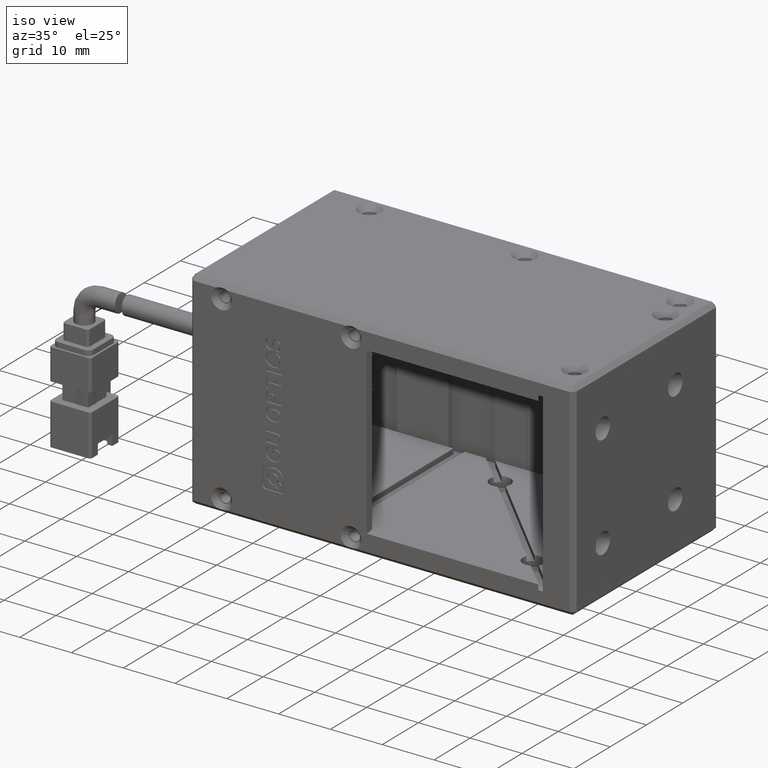
[diagram: clean part render]
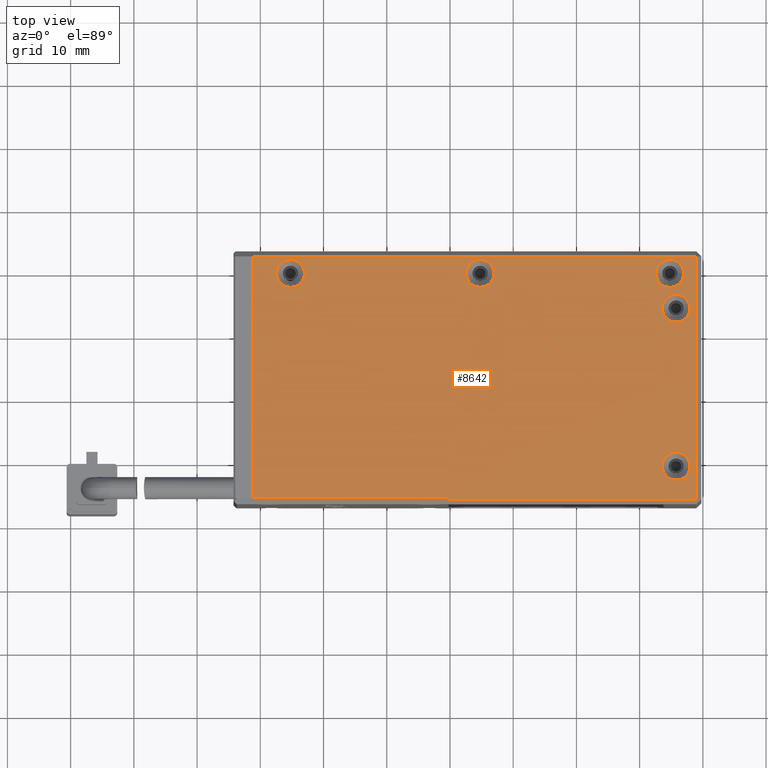
[diagram: tour spotlight — one face highlighted and labeled with its STEP entity id]
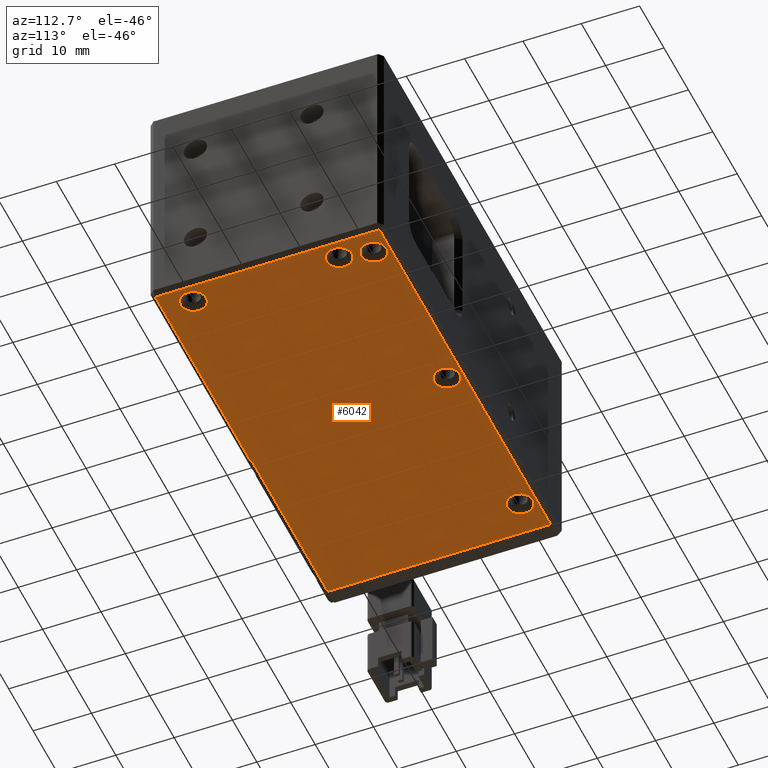
[diagram: tour spotlight — one face highlighted and labeled with its STEP entity id]
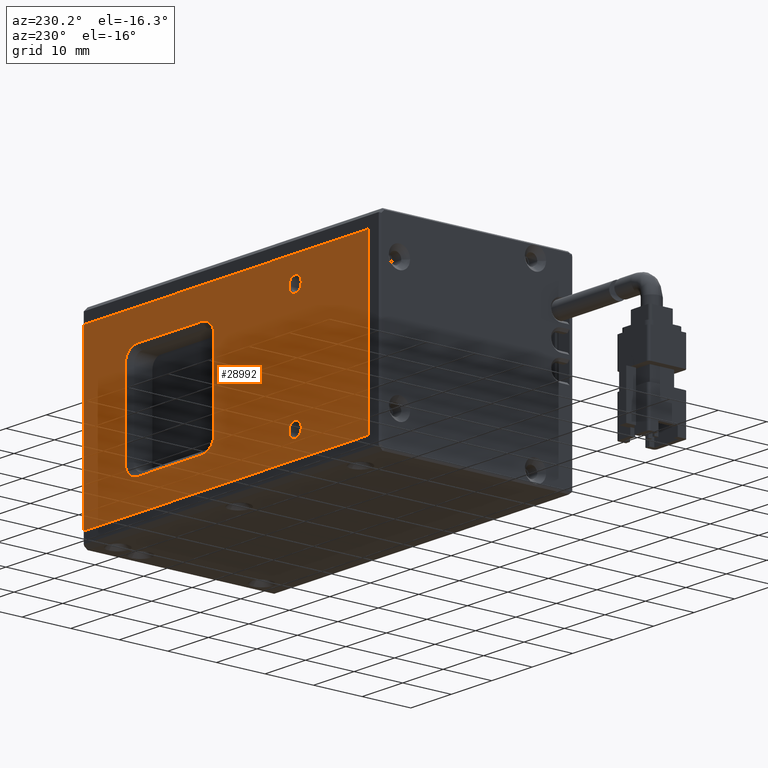
[diagram: tour spotlight — one face highlighted and labeled with its STEP entity id]
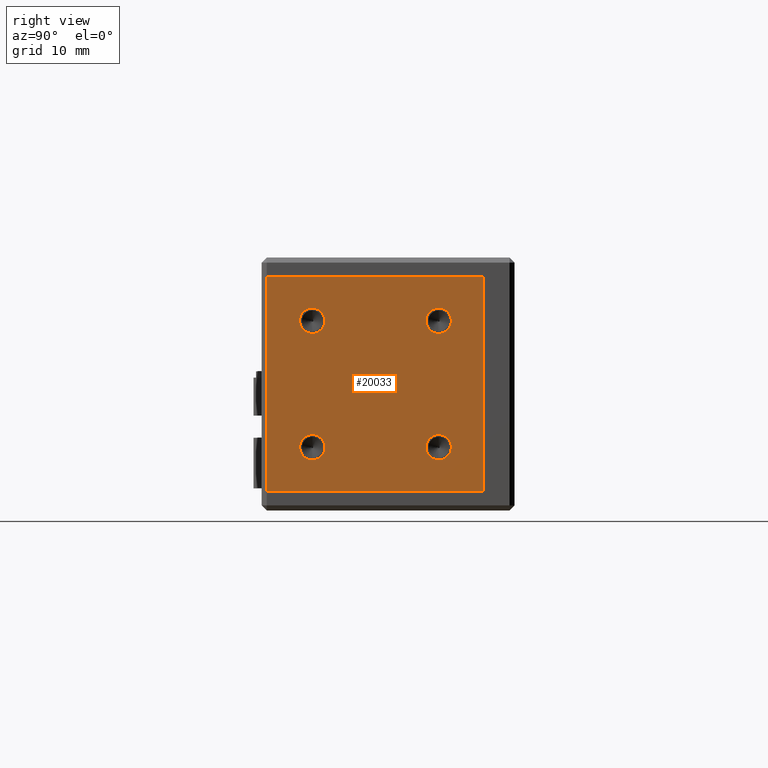
[diagram: tour spotlight — one face highlighted and labeled with its STEP entity id]
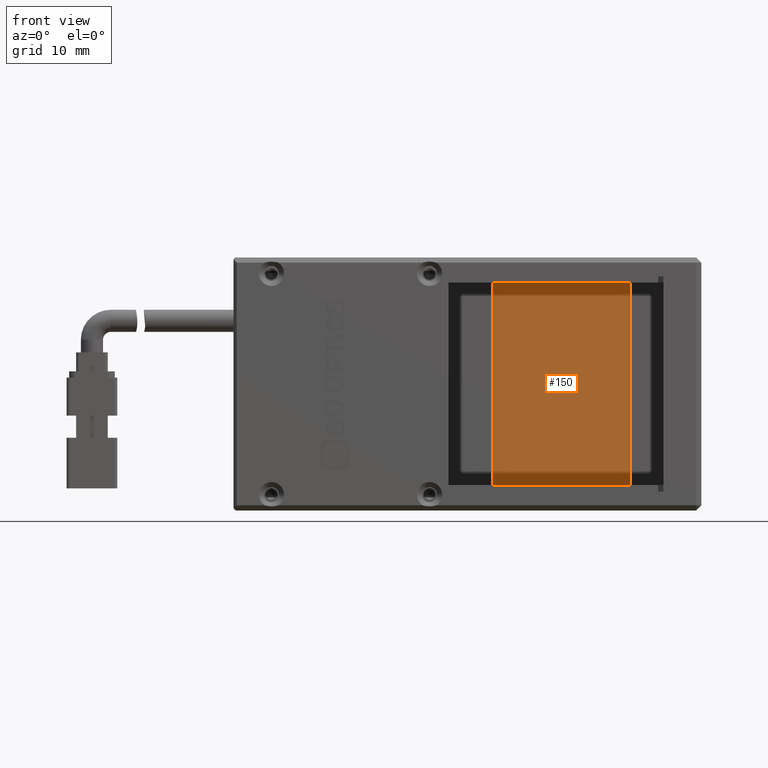
[diagram: tour spotlight — one face highlighted and labeled with its STEP entity id]
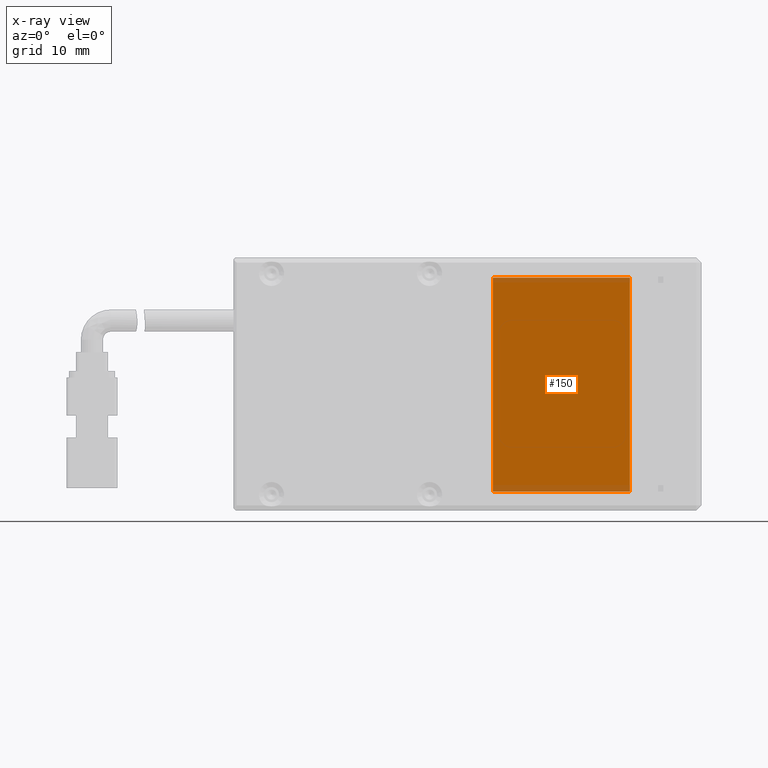
[diagram: x-ray of the same camera — body ghosted, this tour face saturated]
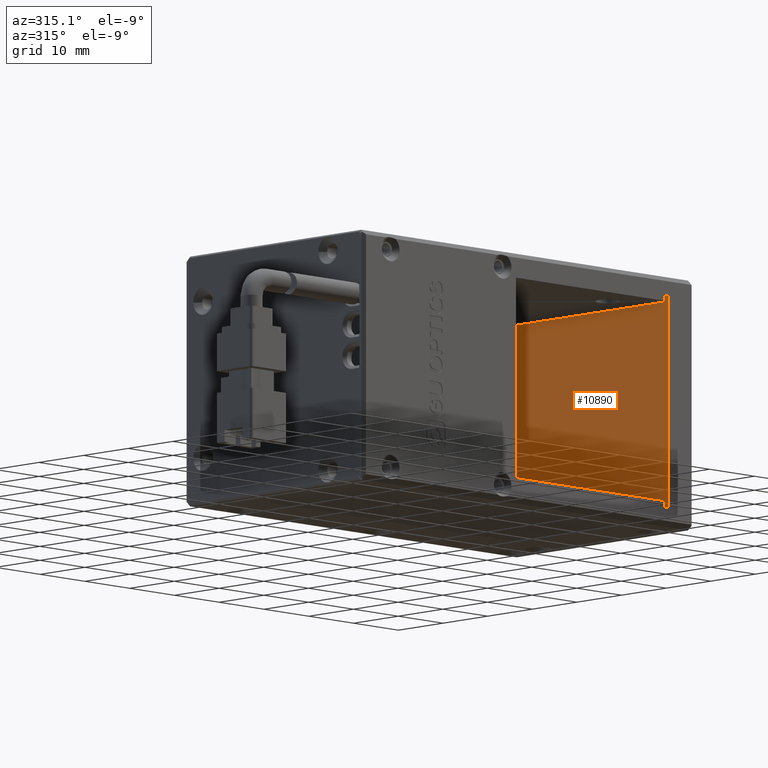
[diagram: tour spotlight — one face highlighted and labeled with its STEP entity id]
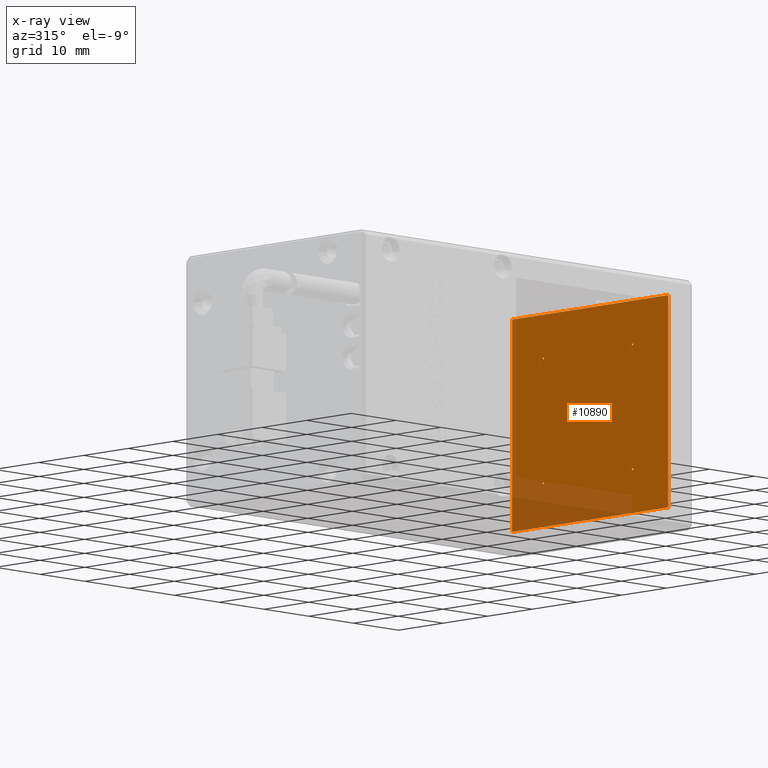
[diagram: x-ray of the same camera — body ghosted, this tour face saturated]
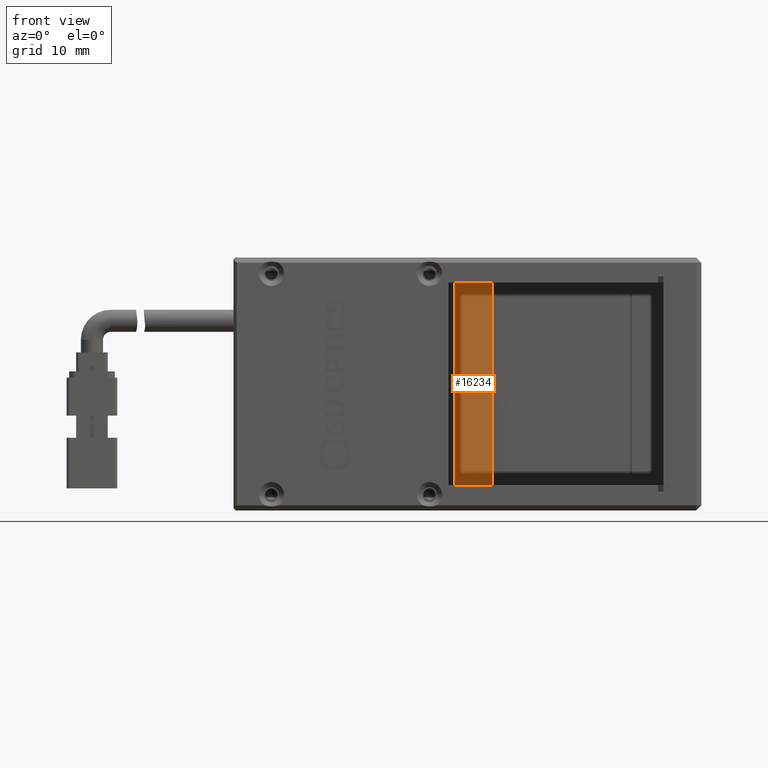
[diagram: tour spotlight — one face highlighted and labeled with its STEP entity id]
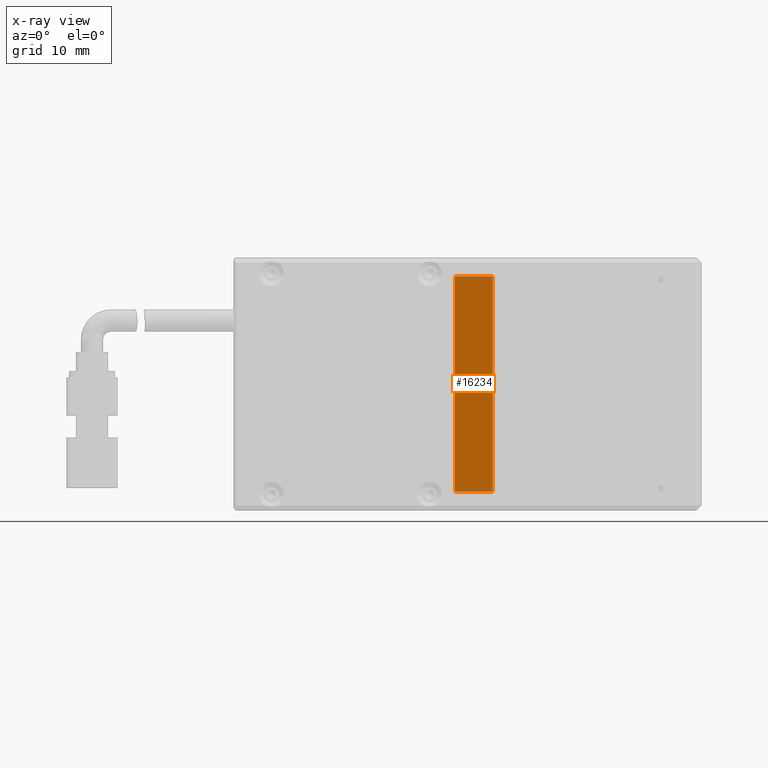
[diagram: x-ray of the same camera — body ghosted, this tour face saturated]
A machine part: a face-by-face anatomy tour. The part has 784 B-rep faces; the first image is the clean iso view, then the 7 largest visible faces are spotlighted one at a time (largest first), each with its STEP entity span.

Face 1 — top view, entity #8642. In plain terms, the highlighted planar face has unit normal (0, 0, -1).
Definition (entity closure, byte-faithful):
#1204 = CARTESIAN_POINT ( 'NONE',  ( -5.237779798012029500, 31.88138602239439100, 40.00000000001455200 ) ) ;
#1643 = EDGE_LOOP ( 'NONE', ( #1901, #29006 ) ) ;
#1779 = CIRCLE ( 'NONE', #10296, 2.199999999963893900 ) ;
#1901 = ORIENTED_EDGE ( 'NONE', *, *, #25206, .F. ) ;
#1916 = CARTESIAN_POINT ( 'NONE',  ( -10.23777979801202800, -5.818613977539942400, 40.00000000000955000 ) ) ;
#2080 = EDGE_LOOP ( 'NONE', ( #18135, #32638 ) ) ;
#2528 = CIRCLE ( 'NONE', #24885, 2.199999999934338000 ) ;
#2779 = PLANE ( 'NONE',  #12585 ) ;
#2990 = CARTESIAN_POINT ( 'NONE',  ( -41.23777979801202100, -6.018613977539940800, 40.00000000000955000 ) ) ;
#2998 = CARTESIAN_POINT ( 'NONE',  ( -35.23777979801202800, 29.68138602246005700, 39.99999999995770800 ) ) ;
#3408 = ORIENTED_EDGE ( 'NONE', *, *, #27517, .F. ) ;
#3580 = LINE ( 'NONE', #2990, #30981 ) ;
#3881 = CIRCLE ( 'NONE', #17924, 2.199999999963893900 ) ;
#3933 = AXIS2_PLACEMENT_3D ( 'NONE', #31122, #15217, #33800 ) ;
#4422 = CARTESIAN_POINT ( 'NONE',  ( 28.96222020198798200, -6.018613977539940800, 40.00000000000955000 ) ) ;
#4569 = DIRECTION ( 'NONE',  ( 0.0000000000000000000, -1.000000000000000000, -0.0000000000000000000 ) ) ;
#4834 = CARTESIAN_POINT ( 'NONE',  ( -35.23777979801202800, 31.88138602253535900, 39.99999999995770800 ) ) ;
#4837 = DIRECTION ( 'NONE',  ( 0.0000000000000000000, 1.000000000000000000, 0.0000000000000000000 ) ) ;
#4847 = FACE_BOUND ( 'NONE', #8502, .T. ) ;
#5009 = CIRCLE ( 'NONE', #27098, 2.199999999934338000 ) ;
#5382 = DIRECTION ( 'NONE',  ( 0.0000000000000000000, -0.0000000000000000000, 1.000000000000000000 ) ) ;
#5439 = EDGE_LOOP ( 'NONE', ( #32720, #30462 ) ) ;
#5717 = DIRECTION ( 'NONE',  ( 0.0000000000000000000, -1.000000000000000000, 0.0000000000000000000 ) ) ;
#5804 = ORIENTED_EDGE ( 'NONE', *, *, #5809, .F. ) ;
#5809 = EDGE_CURVE ( 'NONE', #21550, #32497, #8755, .T. ) ;
#5941 = LINE ( 'NONE', #17120, #19999 ) ;
#6205 = EDGE_CURVE ( 'NONE', #17203, #8381, #15662, .T. ) ;
#6358 = CARTESIAN_POINT ( 'NONE',  ( 25.76222020198797600, -3.018613977480187200, 40.00000000001455200 ) ) ;
#6420 = EDGE_LOOP ( 'NONE', ( #15099, #33478, #26084, #5804, #33746, #17604 ) ) ;
#6665 = CIRCLE ( 'NONE', #3933, 2.199999999940242600 ) ;
#6802 = CARTESIAN_POINT ( 'NONE',  ( -35.23777979801202800, 27.48138602238474700, 39.99999999995770800 ) ) ;
#7909 = VECTOR ( 'NONE', #4837, 1000.000000000000000 ) ;
#8381 = VERTEX_POINT ( 'NONE', #4422 ) ;
#8502 = EDGE_LOOP ( 'NONE', ( #3408, #13395 ) ) ;
#8642 = ADVANCED_FACE ( 'NONE', ( #11919, #25979, #33092, #4847, #32236, #25139 ), #2779, .F. ) ;
#8755 = LINE ( 'NONE', #25777, #7909 ) ;
#8963 = VERTEX_POINT ( 'NONE', #6358 ) ;
#9109 = DIRECTION ( 'NONE',  ( 0.0000000000000000000, 1.971276677356141000E-016, 1.000000000000000000 ) ) ;
#9256 = EDGE_CURVE ( 'NONE', #15057, #25503, #25003, .T. ) ;
#9321 = AXIS2_PLACEMENT_3D ( 'NONE', #29003, #13141, #31670 ) ;
#10056 = CARTESIAN_POINT ( 'NONE',  ( 25.76222020198797600, -0.8186139775399441400, 40.00000000001455200 ) ) ;
#10097 = CARTESIAN_POINT ( 'NONE',  ( 25.76222020198797200, 24.18138602246005700, 40.00000000001455200 ) ) ;
#10296 = AXIS2_PLACEMENT_3D ( 'NONE', #21223, #5382, #23904 ) ;
#10781 = CARTESIAN_POINT ( 'NONE',  ( 25.76222020198797200, 21.98138602251981100, 40.00000000001455200 ) ) ;
#11311 = CARTESIAN_POINT ( 'NONE',  ( 25.76222020198797200, 26.38138602240030300, 40.00000000001455200 ) ) ;
#11919 = FACE_OUTER_BOUND ( 'NONE', #6420, .T. ) ;
#12014 = CARTESIAN_POINT ( 'NONE',  ( -5.237779798012029500, 29.68138602246005700, 40.00000000001455200 ) ) ;
#12117 = CARTESIAN_POINT ( 'NONE',  ( -35.23777979801202800, 29.68138602246005700, 39.99999999995770800 ) ) ;
#12577 = CARTESIAN_POINT ( 'NONE',  ( -5.237779798012029500, 27.48138602252571900, 40.00000000001455200 ) ) ;
#12585 = AXIS2_PLACEMENT_3D ( 'NONE', #13459, #32004, #16119 ) ;
#12696 = DIRECTION ( 'NONE',  ( 0.0000000000000000000, -1.000000000000000000, 0.0000000000000000000 ) ) ;
#12741 = DIRECTION ( 'NONE',  ( 0.0000000000000000000, -1.000000000000000000, 0.0000000000000000000 ) ) ;
#12848 = CARTESIAN_POINT ( 'NONE',  ( 24.76222020198797200, 29.68138602246005700, 40.00000000001455200 ) ) ;
#12899 = DIRECTION ( 'NONE',  ( -0.0000000000000000000, -1.000000000000000000, -0.0000000000000000000 ) ) ;
#13141 = DIRECTION ( 'NONE',  ( 0.0000000000000000000, 1.971276677350846800E-016, 1.000000000000000000 ) ) ;
#13363 = AXIS2_PLACEMENT_3D ( 'NONE', #10097, #28574, #12741 ) ;
#13395 = ORIENTED_EDGE ( 'NONE', *, *, #26341, .F. ) ;
#13459 = CARTESIAN_POINT ( 'NONE',  ( -41.23777979801202100, -5.818613977539945000, 40.00000000000955000 ) ) ;
#13672 = DIRECTION ( 'NONE',  ( -1.000000000000000000, 0.0000000000000000000, -0.0000000000000000000 ) ) ;
#13809 = EDGE_CURVE ( 'NONE', #33323, #25261, #5009, .T. ) ;
#14007 = EDGE_CURVE ( 'NONE', #25503, #15057, #22827, .T. ) ;
#14316 = EDGE_LOOP ( 'NONE', ( #24137, #29525 ) ) ;
#14641 = DIRECTION ( 'NONE',  ( 0.0000000000000000000, -1.000000000000000000, 0.0000000000000000000 ) ) ;
#14760 = DIRECTION ( 'NONE',  ( 0.0000000000000000000, -1.000000000000000000, 0.0000000000000000000 ) ) ;
#14905 = EDGE_CURVE ( 'NONE', #22592, #21550, #32989, .T. ) ;
#15057 = VERTEX_POINT ( 'NONE', #10781 ) ;
#15099 = ORIENTED_EDGE ( 'NONE', *, *, #30129, .F. ) ;
#15217 = DIRECTION ( 'NONE',  ( 0.0000000000000000000, 1.971276677350850000E-016, 1.000000000000000000 ) ) ;
#15467 = DIRECTION ( 'NONE',  ( 1.000000000000000000, 0.0000000000000000000, 0.0000000000000000000 ) ) ;
#15662 = LINE ( 'NONE', #23429, #33542 ) ;
#15680 = CIRCLE ( 'NONE', #30111, 2.199999999940242600 ) ;
#16063 = LINE ( 'NONE', #1916, #29348 ) ;
#16119 = DIRECTION ( 'NONE',  ( -1.000000000000000000, 0.0000000000000000000, -0.0000000000000000000 ) ) ;
#16556 = CARTESIAN_POINT ( 'NONE',  ( 22.56222020202407900, 29.68138602246005700, 40.00000000001455200 ) ) ;
#16560 = EDGE_CURVE ( 'NONE', #8963, #29151, #6665, .T. ) ;
#16823 = VERTEX_POINT ( 'NONE', #23015 ) ;
#16867 = EDGE_CURVE ( 'NONE', #22592, #29339, #16063, .T. ) ;
#17120 = CARTESIAN_POINT ( 'NONE',  ( -41.23777979801202100, 32.38138602246006300, 40.00000000000955000 ) ) ;
#17203 = VERTEX_POINT ( 'NONE', #19270 ) ;
#17604 = ORIENTED_EDGE ( 'NONE', *, *, #16867, .T. ) ;
#17632 = CARTESIAN_POINT ( 'NONE',  ( -10.23777979801202800, -5.818613977539942400, 40.00000000000955000 ) ) ;
#17708 = EDGE_CURVE ( 'NONE', #30498, #20578, #22606, .T. ) ;
#17924 = AXIS2_PLACEMENT_3D ( 'NONE', #12848, #31376, #15467 ) ;
#18135 = ORIENTED_EDGE ( 'NONE', *, *, #16560, .F. ) ;
#18264 = CARTESIAN_POINT ( 'NONE',  ( -41.23777979801202100, 32.38138602246006300, 40.00000000000955000 ) ) ;
#18334 = AXIS2_PLACEMENT_3D ( 'NONE', #12117, #30677, #14760 ) ;
#18422 = EDGE_CURVE ( 'NONE', #32497, #17203, #5941, .T. ) ;
#19270 = CARTESIAN_POINT ( 'NONE',  ( 28.96222020198798900, 32.38138602246006300, 40.00000000000955000 ) ) ;
#19797 = DIRECTION ( 'NONE',  ( 1.000000000000000000, -0.0000000000000000000, 0.0000000000000000000 ) ) ;
#19971 = EDGE_CURVE ( 'NONE', #29151, #8963, #15680, .T. ) ;
#19999 = VECTOR ( 'NONE', #19797, 1000.000000000000000 ) ;
#20578 = VERTEX_POINT ( 'NONE', #6802 ) ;
#21223 = CARTESIAN_POINT ( 'NONE',  ( 24.76222020198797200, 29.68138602246005700, 40.00000000001455200 ) ) ;
#21550 = VERTEX_POINT ( 'NONE', #33545 ) ;
#21559 = DIRECTION ( 'NONE',  ( 0.0000000000000000000, 1.971276677178895800E-016, 1.000000000000000000 ) ) ;
#22592 = VERTEX_POINT ( 'NONE', #17632 ) ;
#22606 = CIRCLE ( 'NONE', #31792, 2.200000000075308400 ) ;
#22827 = CIRCLE ( 'NONE', #13363, 2.199999999940246200 ) ;
#23015 = CARTESIAN_POINT ( 'NONE',  ( 26.96222020195186500, 29.68138602246005700, 40.00000000001455200 ) ) ;
#23226 = CARTESIAN_POINT ( 'NONE',  ( 25.76222020198797600, 1.381386022400298300, 40.00000000001455200 ) ) ;
#23429 = CARTESIAN_POINT ( 'NONE',  ( 28.96222020198797900, -5.818613977539945000, 40.00000000000955000 ) ) ;
#23713 = EDGE_CURVE ( 'NONE', #25261, #33323, #2528, .T. ) ;
#23904 = DIRECTION ( 'NONE',  ( 1.000000000000000000, 0.0000000000000000000, 0.0000000000000000000 ) ) ;
#24137 = ORIENTED_EDGE ( 'NONE', *, *, #9256, .F. ) ;
#24871 = CARTESIAN_POINT ( 'NONE',  ( -5.237779798012029500, 29.68138602246005700, 40.00000000001455200 ) ) ;
#24885 = AXIS2_PLACEMENT_3D ( 'NONE', #12014, #30565, #14641 ) ;
#25003 = CIRCLE ( 'NONE', #9321, 2.199999999940246200 ) ;
#25139 = FACE_BOUND ( 'NONE', #1643, .T. ) ;
#25206 = EDGE_CURVE ( 'NONE', #20578, #30498, #26794, .T. ) ;
#25261 = VERTEX_POINT ( 'NONE', #12577 ) ;
#25503 = VERTEX_POINT ( 'NONE', #11311 ) ;
#25777 = CARTESIAN_POINT ( 'NONE',  ( -41.23777979801202100, -5.818613977539945000, 40.00000000000955000 ) ) ;
#25867 = VECTOR ( 'NONE', #28829, 1000.000000000000000 ) ;
#25979 = FACE_BOUND ( 'NONE', #2080, .T. ) ;
#26084 = ORIENTED_EDGE ( 'NONE', *, *, #18422, .F. ) ;
#26140 = CARTESIAN_POINT ( 'NONE',  ( -41.23777979801202100, -5.818613977539942400, 40.00000000000955000 ) ) ;
#26341 = EDGE_CURVE ( 'NONE', #32630, #16823, #3881, .T. ) ;
#26794 = CIRCLE ( 'NONE', #18334, 2.200000000075308400 ) ;
#27098 = AXIS2_PLACEMENT_3D ( 'NONE', #24871, #9109, #27571 ) ;
#27517 = EDGE_CURVE ( 'NONE', #16823, #32630, #1779, .T. ) ;
#27571 = DIRECTION ( 'NONE',  ( 0.0000000000000000000, -1.000000000000000000, 0.0000000000000000000 ) ) ;
#28537 = DIRECTION ( 'NONE',  ( 0.0000000000000000000, 1.971276677350850000E-016, 1.000000000000000000 ) ) ;
#28574 = DIRECTION ( 'NONE',  ( 0.0000000000000000000, 1.971276677350846800E-016, 1.000000000000000000 ) ) ;
#28829 = DIRECTION ( 'NONE',  ( -1.000000000000000000, 0.0000000000000000000, -0.0000000000000000000 ) ) ;
#29003 = CARTESIAN_POINT ( 'NONE',  ( 25.76222020198797200, 24.18138602246005700, 40.00000000001455200 ) ) ;
#29006 = ORIENTED_EDGE ( 'NONE', *, *, #17708, .F. ) ;
#29151 = VERTEX_POINT ( 'NONE', #23226 ) ;
#29339 = VERTEX_POINT ( 'NONE', #29377 ) ;
#29348 = VECTOR ( 'NONE', #4569, 1000.000000000000000 ) ;
#29377 = CARTESIAN_POINT ( 'NONE',  ( -10.23777979801202100, -6.018613977539940800, 40.00000000000955000 ) ) ;
#29525 = ORIENTED_EDGE ( 'NONE', *, *, #14007, .F. ) ;
#30111 = AXIS2_PLACEMENT_3D ( 'NONE', #10056, #28537, #12696 ) ;
#30129 = EDGE_CURVE ( 'NONE', #8381, #29339, #3580, .T. ) ;
#30462 = ORIENTED_EDGE ( 'NONE', *, *, #13809, .F. ) ;
#30498 = VERTEX_POINT ( 'NONE', #4834 ) ;
#30565 = DIRECTION ( 'NONE',  ( 0.0000000000000000000, 1.971276677356141000E-016, 1.000000000000000000 ) ) ;
#30677 = DIRECTION ( 'NONE',  ( 0.0000000000000000000, 1.971276677178895800E-016, 1.000000000000000000 ) ) ;
#30981 = VECTOR ( 'NONE', #13672, 1000.000000000000000 ) ;
#31122 = CARTESIAN_POINT ( 'NONE',  ( 25.76222020198797600, -0.8186139775399441400, 40.00000000001455200 ) ) ;
#31376 = DIRECTION ( 'NONE',  ( 0.0000000000000000000, -0.0000000000000000000, 1.000000000000000000 ) ) ;
#31670 = DIRECTION ( 'NONE',  ( 0.0000000000000000000, -1.000000000000000000, 0.0000000000000000000 ) ) ;
#31792 = AXIS2_PLACEMENT_3D ( 'NONE', #2998, #21559, #5717 ) ;
#32004 = DIRECTION ( 'NONE',  ( 0.0000000000000000000, 0.0000000000000000000, -1.000000000000000000 ) ) ;
#32236 = FACE_BOUND ( 'NONE', #5439, .T. ) ;
#32497 = VERTEX_POINT ( 'NONE', #18264 ) ;
#32630 = VERTEX_POINT ( 'NONE', #16556 ) ;
#32638 = ORIENTED_EDGE ( 'NONE', *, *, #19971, .F. ) ;
#32720 = ORIENTED_EDGE ( 'NONE', *, *, #23713, .F. ) ;
#32989 = LINE ( 'NONE', #26140, #25867 ) ;
#33092 = FACE_BOUND ( 'NONE', #14316, .T. ) ;
#33323 = VERTEX_POINT ( 'NONE', #1204 ) ;
#33478 = ORIENTED_EDGE ( 'NONE', *, *, #6205, .F. ) ;
#33542 = VECTOR ( 'NONE', #12899, 1000.000000000000000 ) ;
#33545 = CARTESIAN_POINT ( 'NONE',  ( -41.23777979801200600, -5.818613977539944100, 40.00000000000955000 ) ) ;
#33746 = ORIENTED_EDGE ( 'NONE', *, *, #14905, .F. ) ;
#33800 = DIRECTION ( 'NONE',  ( 0.0000000000000000000, -1.000000000000000000, 0.0000000000000000000 ) ) ;

Face 2 — auxiliary view, entity #6042. In plain terms, the highlighted planar face has unit normal (0, -0, 1).
Definition (entity closure, byte-faithful):
#65 = CARTESIAN_POINT ( 'NONE',  ( 26.96222020194732100, 29.68138602246005000, 6.184809609249062900E-011 ) ) ;
#1096 = CIRCLE ( 'NONE', #28398, 2.199999999984360200 ) ;
#1564 = CARTESIAN_POINT ( 'NONE',  ( 27.96222020190957400, 24.18138602246005700, 9.549652735252323100E-012 ) ) ;
#2027 = AXIS2_PLACEMENT_3D ( 'NONE', #24358, #8554, #27014 ) ;
#2042 = EDGE_CURVE ( 'NONE', #32198, #17896, #4964, .T. ) ;
#2746 = EDGE_CURVE ( 'NONE', #21939, #24875, #8669, .T. ) ;
#2777 = VECTOR ( 'NONE', #13130, 1000.000000000000000 ) ;
#2822 = FACE_BOUND ( 'NONE', #15859, .T. ) ;
#2907 = EDGE_CURVE ( 'NONE', #5558, #24708, #15615, .T. ) ;
#3045 = CIRCLE ( 'NONE', #11543, 2.199999999921601600 ) ;
#3290 = DIRECTION ( 'NONE',  ( -0.0000000000000000000, 1.000000000000000000, 0.0000000000000000000 ) ) ;
#3727 = EDGE_CURVE ( 'NONE', #17896, #32198, #15216, .T. ) ;
#4172 = DIRECTION ( 'NONE',  ( 0.0000000000000000000, 0.0000000000000000000, -1.000000000000000000 ) ) ;
#4417 = VERTEX_POINT ( 'NONE', #33509 ) ;
#4487 = DIRECTION ( 'NONE',  ( 0.0000000000000000000, 0.0000000000000000000, -1.000000000000000000 ) ) ;
#4706 = LINE ( 'NONE', #27700, #10146 ) ;
#4964 = CIRCLE ( 'NONE', #21656, 2.200000000013913000 ) ;
#5056 = ORIENTED_EDGE ( 'NONE', *, *, #9629, .F. ) ;
#5309 = CARTESIAN_POINT ( 'NONE',  ( -41.23777979801203500, -5.818613977539941500, 9.549652735252323100E-012 ) ) ;
#5558 = VERTEX_POINT ( 'NONE', #9207 ) ;
#5574 = CARTESIAN_POINT ( 'NONE',  ( 28.96222020198797200, -6.018613977539939000, 9.549666287779479100E-012 ) ) ;
#6042 = ADVANCED_FACE ( 'NONE', ( #31056, #2822, #10751, #30221, #23155, #16100 ), #19303, .F. ) ;
#6314 = EDGE_CURVE ( 'NONE', #4417, #18740, #28911, .T. ) ;
#6958 = ORIENTED_EDGE ( 'NONE', *, *, #2042, .F. ) ;
#7268 = CIRCLE ( 'NONE', #20785, 2.199999999921605100 ) ;
#7418 = CARTESIAN_POINT ( 'NONE',  ( -35.23777979801202800, 29.68138602246005000, 9.549652735252323100E-012 ) ) ;
#7816 = AXIS2_PLACEMENT_3D ( 'NONE', #7418, #25848, #10059 ) ;
#8301 = CARTESIAN_POINT ( 'NONE',  ( 24.76222020198797600, 29.68138602246005000, 6.184809609249062900E-011 ) ) ;
#8516 = EDGE_CURVE ( 'NONE', #24875, #27205, #33925, .T. ) ;
#8554 = DIRECTION ( 'NONE',  ( 0.0000000000000000000, 0.0000000000000000000, -1.000000000000000000 ) ) ;
#8669 = LINE ( 'NONE', #24997, #21883 ) ;
#9207 = CARTESIAN_POINT ( 'NONE',  ( -3.037779798027662200, 29.68138602246005000, 9.549652735252323100E-012 ) ) ;
#9325 = CARTESIAN_POINT ( 'NONE',  ( 25.76222020198797200, 24.18138602246005700, 9.549652735252323100E-012 ) ) ;
#9598 = EDGE_CURVE ( 'NONE', #33955, #14519, #4706, .T. ) ;
#9629 = EDGE_CURVE ( 'NONE', #12988, #27336, #3045, .T. ) ;
#9808 = CARTESIAN_POINT ( 'NONE',  ( 27.96222020190958100, -0.8186139775399421400, 9.549652735252323100E-012 ) ) ;
#9939 = CARTESIAN_POINT ( 'NONE',  ( 23.56222020206637100, 24.18138602246005700, 9.549652735252323100E-012 ) ) ;
#9986 = CIRCLE ( 'NONE', #2027, 2.199999999959345600 ) ;
#10016 = CARTESIAN_POINT ( 'NONE',  ( 28.96222020198797200, 32.38138602246006300, 9.549103840638551400E-012 ) ) ;
#10059 = DIRECTION ( 'NONE',  ( -1.000000000000000000, 0.0000000000000000000, 0.0000000000000000000 ) ) ;
#10146 = VECTOR ( 'NONE', #14475, 1000.000000000000000 ) ;
#10751 = FACE_BOUND ( 'NONE', #23174, .T. ) ;
#10925 = DIRECTION ( 'NONE',  ( -1.000000000000000000, 0.0000000000000000000, 0.0000000000000000000 ) ) ;
#10940 = DIRECTION ( 'NONE',  ( 0.0000000000000000000, 0.0000000000000000000, -1.000000000000000000 ) ) ;
#11216 = EDGE_CURVE ( 'NONE', #27336, #12988, #13462, .T. ) ;
#11543 = AXIS2_PLACEMENT_3D ( 'NONE', #9325, #27804, #11959 ) ;
#11624 = VERTEX_POINT ( 'NONE', #31712 ) ;
#11959 = DIRECTION ( 'NONE',  ( -1.000000000000000000, 0.0000000000000000000, 0.0000000000000000000 ) ) ;
#12988 = VERTEX_POINT ( 'NONE', #1564 ) ;
#13084 = EDGE_LOOP ( 'NONE', ( #33076, #20645 ) ) ;
#13130 = DIRECTION ( 'NONE',  ( 1.000000000000000000, 0.0000000000000000000, -0.0000000000000000000 ) ) ;
#13462 = CIRCLE ( 'NONE', #14241, 2.199999999921601600 ) ;
#13619 = DIRECTION ( 'NONE',  ( 0.0000000000000000000, 0.0000000000000000000, -1.000000000000000000 ) ) ;
#13949 = DIRECTION ( 'NONE',  ( 0.0000000000000000000, 0.0000000000000000000, -1.000000000000000000 ) ) ;
#14086 = CARTESIAN_POINT ( 'NONE',  ( 29.76222020198797200, 33.18138602246005300, 9.549652735252323100E-012 ) ) ;
#14099 = EDGE_CURVE ( 'NONE', #18740, #4417, #9986, .T. ) ;
#14135 = AXIS2_PLACEMENT_3D ( 'NONE', #15492, #34086, #18144 ) ;
#14241 = AXIS2_PLACEMENT_3D ( 'NONE', #20361, #4487, #23043 ) ;
#14340 = ORIENTED_EDGE ( 'NONE', *, *, #11216, .F. ) ;
#14475 = DIRECTION ( 'NONE',  ( 1.000000000000000000, 0.0000000000000000000, -0.0000000000000000000 ) ) ;
#14519 = VERTEX_POINT ( 'NONE', #5574 ) ;
#14564 = DIRECTION ( 'NONE',  ( -0.0000000000000000000, -1.000000000000000000, -0.0000000000000000000 ) ) ;
#14803 = CARTESIAN_POINT ( 'NONE',  ( -7.437779797996382700, 29.68138602246005000, 9.549652735252323100E-012 ) ) ;
#14897 = ORIENTED_EDGE ( 'NONE', *, *, #2746, .F. ) ;
#15216 = CIRCLE ( 'NONE', #7816, 2.200000000013913000 ) ;
#15492 = CARTESIAN_POINT ( 'NONE',  ( -5.237779798012022400, 29.68138602246005000, 9.549652735252323100E-012 ) ) ;
#15615 = CIRCLE ( 'NONE', #14135, 2.199999999984360200 ) ;
#15859 = EDGE_LOOP ( 'NONE', ( #33815, #20234 ) ) ;
#16100 = FACE_BOUND ( 'NONE', #22677, .T. ) ;
#16336 = ORIENTED_EDGE ( 'NONE', *, *, #26539, .T. ) ;
#16401 = DIRECTION ( 'NONE',  ( -1.000000000000000000, -0.0000000000000000000, 0.0000000000000000000 ) ) ;
#16402 = ORIENTED_EDGE ( 'NONE', *, *, #14099, .F. ) ;
#16749 = DIRECTION ( 'NONE',  ( 1.000000000000000000, 0.0000000000000000000, -0.0000000000000000000 ) ) ;
#17166 = EDGE_CURVE ( 'NONE', #24708, #5558, #1096, .T. ) ;
#17896 = VERTEX_POINT ( 'NONE', #19694 ) ;
#18144 = DIRECTION ( 'NONE',  ( -1.000000000000000000, 0.0000000000000000000, 0.0000000000000000000 ) ) ;
#18552 = ORIENTED_EDGE ( 'NONE', *, *, #9598, .F. ) ;
#18735 = ORIENTED_EDGE ( 'NONE', *, *, #3727, .F. ) ;
#18740 = VERTEX_POINT ( 'NONE', #65 ) ;
#19139 = CARTESIAN_POINT ( 'NONE',  ( 28.96222020198797200, 33.18138602246005300, 9.549652735252323100E-012 ) ) ;
#19303 = PLANE ( 'NONE',  #23871 ) ;
#19694 = CARTESIAN_POINT ( 'NONE',  ( -33.03777979799811200, 29.68138602246005000, 9.549652735252323100E-012 ) ) ;
#20063 = CARTESIAN_POINT ( 'NONE',  ( 25.76222020198797600, -0.8186139775399423600, 9.549652735252323100E-012 ) ) ;
#20127 = LINE ( 'NONE', #19139, #33426 ) ;
#20234 = ORIENTED_EDGE ( 'NONE', *, *, #21275, .F. ) ;
#20361 = CARTESIAN_POINT ( 'NONE',  ( 25.76222020198797200, 24.18138602246005700, 9.549652735252323100E-012 ) ) ;
#20544 = AXIS2_PLACEMENT_3D ( 'NONE', #20063, #4172, #22749 ) ;
#20577 = EDGE_CURVE ( 'NONE', #11624, #27819, #33488, .T. ) ;
#20645 = ORIENTED_EDGE ( 'NONE', *, *, #2907, .F. ) ;
#20785 = AXIS2_PLACEMENT_3D ( 'NONE', #26784, #10940, #29468 ) ;
#20811 = EDGE_CURVE ( 'NONE', #27852, #21939, #26348, .T. ) ;
#21275 = EDGE_CURVE ( 'NONE', #27819, #11624, #7268, .T. ) ;
#21656 = AXIS2_PLACEMENT_3D ( 'NONE', #29498, #13619, #32175 ) ;
#21665 = ORIENTED_EDGE ( 'NONE', *, *, #25470, .F. ) ;
#21838 = DIRECTION ( 'NONE',  ( 0.0000000000000000000, 1.000000000000000000, 0.0000000000000000000 ) ) ;
#21883 = VECTOR ( 'NONE', #14564, 1000.000000000000000 ) ;
#21939 = VERTEX_POINT ( 'NONE', #27547 ) ;
#22250 = ORIENTED_EDGE ( 'NONE', *, *, #8516, .F. ) ;
#22677 = EDGE_LOOP ( 'NONE', ( #25427, #16402 ) ) ;
#22749 = DIRECTION ( 'NONE',  ( -1.000000000000000000, 0.0000000000000000000, 0.0000000000000000000 ) ) ;
#23043 = DIRECTION ( 'NONE',  ( -1.000000000000000000, 0.0000000000000000000, 0.0000000000000000000 ) ) ;
#23155 = FACE_BOUND ( 'NONE', #13084, .T. ) ;
#23174 = EDGE_LOOP ( 'NONE', ( #14340, #5056 ) ) ;
#23871 = AXIS2_PLACEMENT_3D ( 'NONE', #14086, #32667, #16749 ) ;
#24312 = AXIS2_PLACEMENT_3D ( 'NONE', #8301, #26765, #10925 ) ;
#24358 = CARTESIAN_POINT ( 'NONE',  ( 24.76222020198797600, 29.68138602246005000, 6.184809609249062900E-011 ) ) ;
#24485 = CARTESIAN_POINT ( 'NONE',  ( -10.23777979801202800, -5.818613977539942400, 9.546183288300369400E-012 ) ) ;
#24708 = VERTEX_POINT ( 'NONE', #14803 ) ;
#24875 = VERTEX_POINT ( 'NONE', #5309 ) ;
#24997 = CARTESIAN_POINT ( 'NONE',  ( -41.23777979801203500, 33.18138602246005300, 9.549652735252323100E-012 ) ) ;
#25427 = ORIENTED_EDGE ( 'NONE', *, *, #6314, .F. ) ;
#25470 = EDGE_CURVE ( 'NONE', #14519, #27852, #20127, .T. ) ;
#25848 = DIRECTION ( 'NONE',  ( 0.0000000000000000000, 0.0000000000000000000, -1.000000000000000000 ) ) ;
#26306 = EDGE_LOOP ( 'NONE', ( #18552, #16336, #22250, #14897, #28136, #21665 ) ) ;
#26348 = LINE ( 'NONE', #26933, #32605 ) ;
#26539 = EDGE_CURVE ( 'NONE', #33955, #27205, #28023, .T. ) ;
#26765 = DIRECTION ( 'NONE',  ( 0.0000000000000000000, 0.0000000000000000000, -1.000000000000000000 ) ) ;
#26784 = CARTESIAN_POINT ( 'NONE',  ( 25.76222020198797600, -0.8186139775399423600, 9.549652735252323100E-012 ) ) ;
#26933 = CARTESIAN_POINT ( 'NONE',  ( 29.76222020198797200, 32.38138602246006300, 9.549652735252323100E-012 ) ) ;
#27014 = DIRECTION ( 'NONE',  ( -1.000000000000000000, 0.0000000000000000000, 0.0000000000000000000 ) ) ;
#27205 = VERTEX_POINT ( 'NONE', #30428 ) ;
#27336 = VERTEX_POINT ( 'NONE', #9939 ) ;
#27547 = CARTESIAN_POINT ( 'NONE',  ( -41.23777979801204900, 32.38138602246006300, 9.551367453717982600E-012 ) ) ;
#27700 = CARTESIAN_POINT ( 'NONE',  ( 29.76222020198797200, -6.018613977539926600, 9.549652735252323100E-012 ) ) ;
#27804 = DIRECTION ( 'NONE',  ( 0.0000000000000000000, 0.0000000000000000000, -1.000000000000000000 ) ) ;
#27819 = VERTEX_POINT ( 'NONE', #9808 ) ;
#27852 = VERTEX_POINT ( 'NONE', #10016 ) ;
#28023 = LINE ( 'NONE', #24485, #34287 ) ;
#28136 = ORIENTED_EDGE ( 'NONE', *, *, #20811, .F. ) ;
#28250 = EDGE_LOOP ( 'NONE', ( #6958, #18735 ) ) ;
#28398 = AXIS2_PLACEMENT_3D ( 'NONE', #29843, #13949, #32505 ) ;
#28787 = CARTESIAN_POINT ( 'NONE',  ( -37.43777979802594300, 29.68138602246005000, 9.549652735252323100E-012 ) ) ;
#28911 = CIRCLE ( 'NONE', #24312, 2.199999999959345600 ) ;
#28993 = CARTESIAN_POINT ( 'NONE',  ( 29.76222020198797200, -5.818613977539941500, 9.549652735252323100E-012 ) ) ;
#29468 = DIRECTION ( 'NONE',  ( -1.000000000000000000, 0.0000000000000000000, 0.0000000000000000000 ) ) ;
#29498 = CARTESIAN_POINT ( 'NONE',  ( -35.23777979801202800, 29.68138602246005000, 9.549652735252323100E-012 ) ) ;
#29843 = CARTESIAN_POINT ( 'NONE',  ( -5.237779798012022400, 29.68138602246005000, 9.549652735252323100E-012 ) ) ;
#29969 = CARTESIAN_POINT ( 'NONE',  ( -10.23777979801203300, -6.018613977539931900, 9.547863801667722000E-012 ) ) ;
#30221 = FACE_BOUND ( 'NONE', #28250, .T. ) ;
#30428 = CARTESIAN_POINT ( 'NONE',  ( -10.23777979801202800, -5.818613977539942400, 9.547918011776346200E-012 ) ) ;
#31056 = FACE_OUTER_BOUND ( 'NONE', #26306, .T. ) ;
#31712 = CARTESIAN_POINT ( 'NONE',  ( 23.56222020206637100, -0.8186139775399423600, 9.549652735252323100E-012 ) ) ;
#32175 = DIRECTION ( 'NONE',  ( -1.000000000000000000, 0.0000000000000000000, 0.0000000000000000000 ) ) ;
#32198 = VERTEX_POINT ( 'NONE', #28787 ) ;
#32505 = DIRECTION ( 'NONE',  ( -1.000000000000000000, 0.0000000000000000000, 0.0000000000000000000 ) ) ;
#32605 = VECTOR ( 'NONE', #16401, 1000.000000000000000 ) ;
#32667 = DIRECTION ( 'NONE',  ( 0.0000000000000000000, -0.0000000000000000000, 1.000000000000000000 ) ) ;
#33076 = ORIENTED_EDGE ( 'NONE', *, *, #17166, .F. ) ;
#33426 = VECTOR ( 'NONE', #21838, 1000.000000000000000 ) ;
#33488 = CIRCLE ( 'NONE', #20544, 2.199999999921605100 ) ;
#33509 = CARTESIAN_POINT ( 'NONE',  ( 22.56222020202863000, 29.68138602246005000, 6.184809609249062900E-011 ) ) ;
#33815 = ORIENTED_EDGE ( 'NONE', *, *, #20577, .F. ) ;
#33925 = LINE ( 'NONE', #28993, #2777 ) ;
#33955 = VERTEX_POINT ( 'NONE', #29969 ) ;
#34086 = DIRECTION ( 'NONE',  ( 0.0000000000000000000, 0.0000000000000000000, -1.000000000000000000 ) ) ;
#34287 = VECTOR ( 'NONE', #3290, 1000.000000000000000 ) ;

Face 3 — auxiliary view, entity #28992. In plain terms, the highlighted planar face has unit normal (-0, -1, 0).
Definition (entity closure, byte-faithful):
#142 = ORIENTED_EDGE ( 'NONE', *, *, #21031, .F. ) ;
#174 = VECTOR ( 'NONE', #14787, 1000.000000000000000 ) ;
#381 = CIRCLE ( 'NONE', #19214, 2.999999999985902800 ) ;
#708 = CARTESIAN_POINT ( 'NONE',  ( 15.76222020198797600, 33.18138602237503700, 31.00000000005935500 ) ) ;
#869 = AXIS2_PLACEMENT_3D ( 'NONE', #21617, #5797, #24282 ) ;
#872 = DIRECTION ( 'NONE',  ( 4.956352788505163400E-017, 1.000000000000000000, -1.375664245990882800E-033 ) ) ;
#1188 = CARTESIAN_POINT ( 'NONE',  ( -0.2377797980120249800, 33.18138602245052500, 12.00000000000955300 ) ) ;
#1549 = ORIENTED_EDGE ( 'NONE', *, *, #23307, .F. ) ;
#1597 = CARTESIAN_POINT ( 'NONE',  ( 18.76222020194547800, 33.18138602241755600, 28.00000000000955300 ) ) ;
#1657 = DIRECTION ( 'NONE',  ( -2.775557561562891400E-017, -5.207109099787108300E-050, -1.000000000000000000 ) ) ;
#1765 = VERTEX_POINT ( 'NONE', #25654 ) ;
#1821 = VECTOR ( 'NONE', #33876, 1000.000000000000000 ) ;
#1835 = VERTEX_POINT ( 'NONE', #18216 ) ;
#2284 = EDGE_CURVE ( 'NONE', #32362, #26338, #381, .T. ) ;
#2466 = ORIENTED_EDGE ( 'NONE', *, *, #16653, .F. ) ;
#3122 = VERTEX_POINT ( 'NONE', #20866 ) ;
#3355 = CARTESIAN_POINT ( 'NONE',  ( 18.76222020195251300, 33.18138602254556700, 12.00000000000955000 ) ) ;
#3658 = CARTESIAN_POINT ( 'NONE',  ( -3.237779798012034400, 33.18138602246006700, 3.000000000009554100 ) ) ;
#3750 = ORIENTED_EDGE ( 'NONE', *, *, #28809, .F. ) ;
#3844 = DIRECTION ( 'NONE',  ( -2.710505431226497800E-017, 0.0000000000000000000, -1.000000000000000000 ) ) ;
#4030 = LINE ( 'NONE', #23886, #18099 ) ;
#4163 = EDGE_CURVE ( 'NONE', #1835, #26850, #6520, .T. ) ;
#4231 = CARTESIAN_POINT ( 'NONE',  ( 28.96222020198799300, 33.18138602246006700, 3.000000000009550600 ) ) ;
#4342 = VERTEX_POINT ( 'NONE', #1597 ) ;
#4531 = CIRCLE ( 'NONE', #9498, 1.525000000015097600 ) ;
#5583 = VERTEX_POINT ( 'NONE', #19931 ) ;
#5797 = DIRECTION ( 'NONE',  ( 4.956352788505163400E-017, 1.000000000000000000, -1.375664245990882800E-033 ) ) ;
#6038 = EDGE_LOOP ( 'NONE', ( #3750, #25265 ) ) ;
#6266 = EDGE_CURVE ( 'NONE', #23854, #14974, #4030, .T. ) ;
#6520 = CIRCLE ( 'NONE', #13562, 3.000000000061389100 ) ;
#6730 = EDGE_LOOP ( 'NONE', ( #30881, #22664, #2466, #1549, #142, #19596, #27468, #10560 ) ) ;
#6789 = CARTESIAN_POINT ( 'NONE',  ( 15.76222020198797600, 33.18138602237503700, 28.00000000000955300 ) ) ;
#7141 = EDGE_CURVE ( 'NONE', #5583, #3122, #27536, .T. ) ;
#7675 = CARTESIAN_POINT ( 'NONE',  ( 15.76222020198797600, 33.18138602254556700, 12.00000000000955300 ) ) ;
#7865 = LINE ( 'NONE', #24560, #21074 ) ;
#8055 = DIRECTION ( 'NONE',  ( -2.775557561562891400E-017, -5.207109099787108300E-050, -1.000000000000000000 ) ) ;
#8312 = FACE_BOUND ( 'NONE', #6038, .T. ) ;
#8713 = VERTEX_POINT ( 'NONE', #708 ) ;
#8957 = LINE ( 'NONE', #23070, #1821 ) ;
#9269 = DIRECTION ( 'NONE',  ( -1.472944279400830300E-016, -1.000000000000000000, 4.088241632451778700E-033 ) ) ;
#9334 = CIRCLE ( 'NONE', #9780, 3.000000000061390900 ) ;
#9453 = DIRECTION ( 'NONE',  ( 0.0000000000000000000, 0.0000000000000000000, -1.000000000000000000 ) ) ;
#9498 = AXIS2_PLACEMENT_3D ( 'NONE', #28377, #12538, #31099 ) ;
#9665 = EDGE_CURVE ( 'NONE', #8713, #4342, #9334, .T. ) ;
#9780 = AXIS2_PLACEMENT_3D ( 'NONE', #6789, #25228, #9453 ) ;
#9806 = CARTESIAN_POINT ( 'NONE',  ( -23.23777979801202400, 33.18138602244921000, 8.000000000009553200 ) ) ;
#10335 = DIRECTION ( 'NONE',  ( 1.000000000000000000, 0.0000000000000000000, 0.0000000000000000000 ) ) ;
#10560 = ORIENTED_EDGE ( 'NONE', *, *, #4163, .F. ) ;
#10683 = EDGE_CURVE ( 'NONE', #14100, #14667, #19785, .T. ) ;
#11777 = PLANE ( 'NONE',  #17931 ) ;
#12436 = DIRECTION ( 'NONE',  ( 0.0000000000000000000, 0.0000000000000000000, -1.000000000000000000 ) ) ;
#12538 = DIRECTION ( 'NONE',  ( 4.956352788505163400E-017, 1.000000000000000000, -1.375664245990882800E-033 ) ) ;
#12573 = CIRCLE ( 'NONE', #15569, 2.999999999967258200 ) ;
#12794 = LINE ( 'NONE', #32898, #26018 ) ;
#13562 = AXIS2_PLACEMENT_3D ( 'NONE', #30647, #14716, #33314 ) ;
#14100 = VERTEX_POINT ( 'NONE', #29597 ) ;
#14667 = VERTEX_POINT ( 'NONE', #30008 ) ;
#14716 = DIRECTION ( 'NONE',  ( -9.499676177398493800E-017, 1.000000000000000000, 2.636689804657725200E-033 ) ) ;
#14787 = DIRECTION ( 'NONE',  ( 2.775557561562891400E-017, 5.207109099787108300E-050, 1.000000000000000000 ) ) ;
#14792 = DIRECTION ( 'NONE',  ( 1.000000000000000000, -1.472944279400830300E-016, -2.775557561562891400E-017 ) ) ;
#14974 = VERTEX_POINT ( 'NONE', #28957 ) ;
#15284 = FACE_BOUND ( 'NONE', #6730, .T. ) ;
#15569 = AXIS2_PLACEMENT_3D ( 'NONE', #7675, #26139, #10335 ) ;
#15592 = EDGE_CURVE ( 'NONE', #26850, #8713, #8957, .T. ) ;
#15713 = CARTESIAN_POINT ( 'NONE',  ( -23.23777979801201700, 33.18138602243215000, 30.47499999999445900 ) ) ;
#16134 = VECTOR ( 'NONE', #19527, 1000.000000000000000 ) ;
#16653 = EDGE_CURVE ( 'NONE', #1765, #32362, #12794, .T. ) ;
#16740 = CARTESIAN_POINT ( 'NONE',  ( -23.23777979801202400, 33.18138602244921000, 8.000000000009553200 ) ) ;
#16965 = LINE ( 'NONE', #3658, #16134 ) ;
#17539 = AXIS2_PLACEMENT_3D ( 'NONE', #16740, #872, #19417 ) ;
#17931 = AXIS2_PLACEMENT_3D ( 'NONE', #25067, #9269, #27752 ) ;
#18099 = VECTOR ( 'NONE', #8055, 1000.000000000000000 ) ;
#18208 = CARTESIAN_POINT ( 'NONE',  ( -23.23777979801201700, 33.18138602243215000, 33.52500000002465400 ) ) ;
#18216 = CARTESIAN_POINT ( 'NONE',  ( -3.237779798061821300, 33.18138602251714500, 28.00000000000955300 ) ) ;
#18413 = VECTOR ( 'NONE', #1657, 1000.000000000000000 ) ;
#19214 = AXIS2_PLACEMENT_3D ( 'NONE', #1188, #19747, #3844 ) ;
#19417 = DIRECTION ( 'NONE',  ( 0.0000000000000000000, 0.0000000000000000000, -1.000000000000000000 ) ) ;
#19527 = DIRECTION ( 'NONE',  ( 2.775557561562891400E-017, 5.207109099787108300E-050, 1.000000000000000000 ) ) ;
#19596 = ORIENTED_EDGE ( 'NONE', *, *, #9665, .F. ) ;
#19747 = DIRECTION ( 'NONE',  ( 4.956352788505163400E-017, 1.000000000000000000, -1.375664245990882800E-033 ) ) ;
#19785 = CIRCLE ( 'NONE', #22253, 1.524999999958254200 ) ;
#19931 = CARTESIAN_POINT ( 'NONE',  ( 28.96222020198797900, 33.18138602246007500, 3.000000000009550600 ) ) ;
#20538 = ORIENTED_EDGE ( 'NONE', *, *, #27076, .F. ) ;
#20866 = CARTESIAN_POINT ( 'NONE',  ( 28.96222020198799300, 33.18138602246006700, 37.00000000000955000 ) ) ;
#21031 = EDGE_CURVE ( 'NONE', #4342, #21331, #25468, .T. ) ;
#21074 = VECTOR ( 'NONE', #21940, 1000.000000000000000 ) ;
#21331 = VERTEX_POINT ( 'NONE', #3355 ) ;
#21617 = CARTESIAN_POINT ( 'NONE',  ( -23.23777979801201700, 33.18138602243215000, 32.00000000000955700 ) ) ;
#21940 = DIRECTION ( 'NONE',  ( -1.000000000000000000, 1.472944279400830300E-016, 2.775557561562891400E-017 ) ) ;
#22253 = AXIS2_PLACEMENT_3D ( 'NONE', #9806, #28263, #12436 ) ;
#22356 = DIRECTION ( 'NONE',  ( -1.000000000000000000, 1.472944279400830300E-016, 2.775557561562891400E-017 ) ) ;
#22376 = FACE_BOUND ( 'NONE', #26946, .T. ) ;
#22664 = ORIENTED_EDGE ( 'NONE', *, *, #2284, .F. ) ;
#22857 = ORIENTED_EDGE ( 'NONE', *, *, #26203, .F. ) ;
#23070 = CARTESIAN_POINT ( 'NONE',  ( -41.23777979801202100, 33.18138602246007500, 31.00000000000956400 ) ) ;
#23307 = EDGE_CURVE ( 'NONE', #21331, #1765, #12573, .T. ) ;
#23366 = CARTESIAN_POINT ( 'NONE',  ( -3.237779798007260500, 33.18138602245529300, 12.00000000000955100 ) ) ;
#23854 = VERTEX_POINT ( 'NONE', #25992 ) ;
#23886 = CARTESIAN_POINT ( 'NONE',  ( -41.23777979801202100, 33.18138602246007500, 3.000000000009554100 ) ) ;
#24268 = EDGE_CURVE ( 'NONE', #32202, #32982, #4531, .T. ) ;
#24282 = DIRECTION ( 'NONE',  ( 0.0000000000000000000, 0.0000000000000000000, -1.000000000000000000 ) ) ;
#24560 = CARTESIAN_POINT ( 'NONE',  ( -41.23777979801202100, 33.18138602246007500, 37.00000000000955000 ) ) ;
#24825 = EDGE_LOOP ( 'NONE', ( #32603, #22857, #30305, #32109 ) ) ;
#25067 = CARTESIAN_POINT ( 'NONE',  ( -41.23777979801202100, 33.18138602246007500, 3.000000000009554100 ) ) ;
#25228 = DIRECTION ( 'NONE',  ( 4.956352788505163400E-017, 1.000000000000000000, -1.375664245990882800E-033 ) ) ;
#25265 = ORIENTED_EDGE ( 'NONE', *, *, #24268, .F. ) ;
#25386 = CARTESIAN_POINT ( 'NONE',  ( 18.76222020198799400, 33.18138602246006700, 3.000000000009554100 ) ) ;
#25468 = LINE ( 'NONE', #25386, #18413 ) ;
#25654 = CARTESIAN_POINT ( 'NONE',  ( 15.76222020198797600, 33.18138602250282100, 8.999999999966796300 ) ) ;
#25970 = CARTESIAN_POINT ( 'NONE',  ( -0.2377797980120249800, 33.18138602248872400, 31.00000000005935500 ) ) ;
#25992 = CARTESIAN_POINT ( 'NONE',  ( -41.23777979801202100, 33.18138602246007500, 37.00000000000955000 ) ) ;
#26018 = VECTOR ( 'NONE', #22356, 1000.000000000000000 ) ;
#26139 = DIRECTION ( 'NONE',  ( -9.499676178125986200E-017, 1.000000000000000000, 2.636689804859644900E-033 ) ) ;
#26203 = EDGE_CURVE ( 'NONE', #14974, #5583, #34224, .T. ) ;
#26338 = VERTEX_POINT ( 'NONE', #23366 ) ;
#26850 = VERTEX_POINT ( 'NONE', #25970 ) ;
#26946 = EDGE_LOOP ( 'NONE', ( #30696, #20538 ) ) ;
#27076 = EDGE_CURVE ( 'NONE', #14667, #14100, #28735, .T. ) ;
#27468 = ORIENTED_EDGE ( 'NONE', *, *, #15592, .F. ) ;
#27536 = LINE ( 'NONE', #4231, #174 ) ;
#27752 = DIRECTION ( 'NONE',  ( -1.000000000000000000, 1.472944279400830300E-016, 2.775557561562891400E-017 ) ) ;
#28263 = DIRECTION ( 'NONE',  ( 4.956352788505163400E-017, 1.000000000000000000, -1.375664245990882800E-033 ) ) ;
#28377 = CARTESIAN_POINT ( 'NONE',  ( -23.23777979801201700, 33.18138602243215000, 32.00000000000955700 ) ) ;
#28735 = CIRCLE ( 'NONE', #17539, 1.524999999958254200 ) ;
#28809 = EDGE_CURVE ( 'NONE', #32982, #32202, #33203, .T. ) ;
#28957 = CARTESIAN_POINT ( 'NONE',  ( -41.23777979801202100, 33.18138602246007500, 3.000000000009554100 ) ) ;
#28965 = EDGE_CURVE ( 'NONE', #26338, #1835, #16965, .T. ) ;
#28992 = ADVANCED_FACE ( 'NONE', ( #29421, #15284, #22376, #8312 ), #11777, .F. ) ;
#29421 = FACE_OUTER_BOUND ( 'NONE', #24825, .T. ) ;
#29597 = CARTESIAN_POINT ( 'NONE',  ( -23.23777979801202400, 33.18138602244921000, 6.475000000051298200 ) ) ;
#29802 = EDGE_CURVE ( 'NONE', #3122, #23854, #7865, .T. ) ;
#30008 = CARTESIAN_POINT ( 'NONE',  ( -23.23777979801202400, 33.18138602244921000, 9.524999999967807400 ) ) ;
#30305 = ORIENTED_EDGE ( 'NONE', *, *, #6266, .F. ) ;
#30647 = CARTESIAN_POINT ( 'NONE',  ( -0.2377797980120249800, 33.18138602248872400, 28.00000000000955300 ) ) ;
#30696 = ORIENTED_EDGE ( 'NONE', *, *, #10683, .F. ) ;
#30707 = CARTESIAN_POINT ( 'NONE',  ( -41.23777979801202100, 33.18138602246007500, 3.000000000009554100 ) ) ;
#30740 = CARTESIAN_POINT ( 'NONE',  ( -0.2377797980120249800, 33.18138602244825100, 9.000000000017731600 ) ) ;
#30881 = ORIENTED_EDGE ( 'NONE', *, *, #28965, .F. ) ;
#31099 = DIRECTION ( 'NONE',  ( 0.0000000000000000000, 0.0000000000000000000, -1.000000000000000000 ) ) ;
#32109 = ORIENTED_EDGE ( 'NONE', *, *, #29802, .F. ) ;
#32202 = VERTEX_POINT ( 'NONE', #18208 ) ;
#32362 = VERTEX_POINT ( 'NONE', #30740 ) ;
#32603 = ORIENTED_EDGE ( 'NONE', *, *, #7141, .F. ) ;
#32898 = CARTESIAN_POINT ( 'NONE',  ( -41.23777979801202100, 33.18138602246007500, 9.000000000009544400 ) ) ;
#32982 = VERTEX_POINT ( 'NONE', #15713 ) ;
#33203 = CIRCLE ( 'NONE', #869, 1.525000000015097600 ) ;
#33314 = DIRECTION ( 'NONE',  ( 1.000000000000000000, 0.0000000000000000000, 0.0000000000000000000 ) ) ;
#33398 = VECTOR ( 'NONE', #14792, 1000.000000000000000 ) ;
#33876 = DIRECTION ( 'NONE',  ( 1.000000000000000000, -1.472944279400830300E-016, -2.775557561562891400E-017 ) ) ;
#34224 = LINE ( 'NONE', #30707, #33398 ) ;

Face 4 — right view, entity #20033. In plain terms, the highlighted planar face has unit normal (-1, 0, 0).
Definition (entity closure, byte-faithful):
#353 = ORIENTED_EDGE ( 'NONE', *, *, #15708, .F. ) ;
#741 = CARTESIAN_POINT ( 'NONE',  ( 29.76222020198797600, 21.18138602246006000, 8.000000000009551500 ) ) ;
#1030 = ORIENTED_EDGE ( 'NONE', *, *, #20024, .T. ) ;
#1856 = VERTEX_POINT ( 'NONE', #15593 ) ;
#1910 = VERTEX_POINT ( 'NONE', #26229 ) ;
#1991 = DIRECTION ( 'NONE',  ( 1.000000000000000000, -0.0000000000000000000, -0.0000000000000000000 ) ) ;
#2083 = EDGE_CURVE ( 'NONE', #26068, #14806, #18200, .T. ) ;
#2160 = CARTESIAN_POINT ( 'NONE',  ( 29.76222020198797600, 1.181386022460061200, 10.00000000000955000 ) ) ;
#2359 = DIRECTION ( 'NONE',  ( -4.956352788505164000E-017, -1.000000000000000000, 0.0000000000000000000 ) ) ;
#2521 = CARTESIAN_POINT ( 'NONE',  ( 29.76222020198797200, -6.018613977539940800, 37.00000000000955000 ) ) ;
#2643 = CIRCLE ( 'NONE', #20502, 1.999999999999998200 ) ;
#3038 = EDGE_CURVE ( 'NONE', #23443, #5280, #10238, .T. ) ;
#3834 = VERTEX_POINT ( 'NONE', #13164 ) ;
#3882 = LINE ( 'NONE', #2521, #4710 ) ;
#4047 = VERTEX_POINT ( 'NONE', #741 ) ;
#4135 = VECTOR ( 'NONE', #26817, 1000.000000000000000 ) ;
#4414 = CIRCLE ( 'NONE', #23173, 1.999999999999998200 ) ;
#4606 = ORIENTED_EDGE ( 'NONE', *, *, #3038, .F. ) ;
#4710 = VECTOR ( 'NONE', #21082, 1000.000000000000000 ) ;
#4840 = DIRECTION ( 'NONE',  ( 0.0000000000000000000, 0.0000000000000000000, -1.000000000000000000 ) ) ;
#5071 = EDGE_CURVE ( 'NONE', #4047, #28284, #25363, .T. ) ;
#5259 = DIRECTION ( 'NONE',  ( 1.000000000000000000, -0.0000000000000000000, -0.0000000000000000000 ) ) ;
#5280 = VERTEX_POINT ( 'NONE', #30448 ) ;
#5525 = ORIENTED_EDGE ( 'NONE', *, *, #5071, .F. ) ;
#6163 = ORIENTED_EDGE ( 'NONE', *, *, #19413, .F. ) ;
#6442 = CARTESIAN_POINT ( 'NONE',  ( 29.76222020198797200, 1.181386022460064500, 30.00000000000955000 ) ) ;
#6536 = ORIENTED_EDGE ( 'NONE', *, *, #15599, .F. ) ;
#7049 = VECTOR ( 'NONE', #15430, 1000.000000000000000 ) ;
#7341 = DIRECTION ( 'NONE',  ( 1.000000000000000000, -0.0000000000000000000, -0.0000000000000000000 ) ) ;
#7479 = DIRECTION ( 'NONE',  ( 1.000000000000000000, -0.0000000000000000000, -0.0000000000000000000 ) ) ;
#7676 = VERTEX_POINT ( 'NONE', #22009 ) ;
#8019 = CARTESIAN_POINT ( 'NONE',  ( 29.76222020198797600, 21.18138602246006000, 10.00000000000955000 ) ) ;
#8287 = ORIENTED_EDGE ( 'NONE', *, *, #30960, .T. ) ;
#8340 = CIRCLE ( 'NONE', #12760, 1.999999999999998200 ) ;
#8392 = CARTESIAN_POINT ( 'NONE',  ( 29.76222020198797600, 1.181386022460061200, 10.00000000000955000 ) ) ;
#8430 = ORIENTED_EDGE ( 'NONE', *, *, #28523, .F. ) ;
#8528 = CARTESIAN_POINT ( 'NONE',  ( 29.76222020198797600, 1.181386022460061200, 8.000000000009551500 ) ) ;
#8772 = VERTEX_POINT ( 'NONE', #30147 ) ;
#8929 = EDGE_LOOP ( 'NONE', ( #5525, #20940 ) ) ;
#9130 = DIRECTION ( 'NONE',  ( 0.0000000000000000000, 0.0000000000000000000, -1.000000000000000000 ) ) ;
#9311 = CARTESIAN_POINT ( 'NONE',  ( 29.76222020198797600, 21.18138602246006000, 12.00000000000954800 ) ) ;
#9456 = VERTEX_POINT ( 'NONE', #8528 ) ;
#9617 = DIRECTION ( 'NONE',  ( -0.0000000000000000000, 0.0000000000000000000, 1.000000000000000000 ) ) ;
#10238 = CIRCLE ( 'NONE', #24135, 1.999999999999998200 ) ;
#10679 = DIRECTION ( 'NONE',  ( 0.0000000000000000000, 0.0000000000000000000, -1.000000000000000000 ) ) ;
#11032 = DIRECTION ( 'NONE',  ( 0.0000000000000000000, 0.0000000000000000000, -1.000000000000000000 ) ) ;
#12236 = CARTESIAN_POINT ( 'NONE',  ( 29.76222020198797600, 28.18138602246006000, 37.00000000000955000 ) ) ;
#12760 = AXIS2_PLACEMENT_3D ( 'NONE', #6442, #24893, #9130 ) ;
#13164 = CARTESIAN_POINT ( 'NONE',  ( 29.76222020198797200, 1.181386022460064500, 28.00000000000955300 ) ) ;
#13820 = LINE ( 'NONE', #12236, #20047 ) ;
#13943 = AXIS2_PLACEMENT_3D ( 'NONE', #21120, #5259, #23789 ) ;
#14025 = FACE_OUTER_BOUND ( 'NONE', #29288, .T. ) ;
#14806 = VERTEX_POINT ( 'NONE', #17701 ) ;
#15430 = DIRECTION ( 'NONE',  ( 0.0000000000000000000, 1.000000000000000000, 0.0000000000000000000 ) ) ;
#15593 = CARTESIAN_POINT ( 'NONE',  ( 29.76222020198796900, -6.018613977539944300, 3.000000000009541300 ) ) ;
#15599 = EDGE_CURVE ( 'NONE', #5280, #23443, #2643, .T. ) ;
#15708 = EDGE_CURVE ( 'NONE', #1856, #26068, #3882, .T. ) ;
#16626 = EDGE_CURVE ( 'NONE', #28284, #4047, #29389, .T. ) ;
#17701 = CARTESIAN_POINT ( 'NONE',  ( 29.76222020198797200, 28.18138602246006000, 37.00000000000955000 ) ) ;
#17841 = CARTESIAN_POINT ( 'NONE',  ( 29.76222020198797200, 21.18138602246006000, 30.00000000000955000 ) ) ;
#18199 = DIRECTION ( 'NONE',  ( -1.000000000000000000, 4.956352788505164000E-017, 0.0000000000000000000 ) ) ;
#18200 = LINE ( 'NONE', #21501, #4135 ) ;
#19072 = CIRCLE ( 'NONE', #32399, 1.999999999999998200 ) ;
#19413 = EDGE_CURVE ( 'NONE', #9456, #8772, #23594, .T. ) ;
#20024 = EDGE_CURVE ( 'NONE', #1856, #7676, #28114, .T. ) ;
#20033 = ADVANCED_FACE ( 'NONE', ( #14025, #21925, #34386, #27305, #20246 ), #20780, .F. ) ;
#20047 = VECTOR ( 'NONE', #9617, 1000.000000000000000 ) ;
#20246 = FACE_BOUND ( 'NONE', #34020, .T. ) ;
#20476 = ORIENTED_EDGE ( 'NONE', *, *, #32264, .F. ) ;
#20502 = AXIS2_PLACEMENT_3D ( 'NONE', #23289, #7479, #25928 ) ;
#20524 = EDGE_LOOP ( 'NONE', ( #8430, #20476 ) ) ;
#20537 = DIRECTION ( 'NONE',  ( 0.0000000000000000000, 0.0000000000000000000, -1.000000000000000000 ) ) ;
#20719 = DIRECTION ( 'NONE',  ( 1.000000000000000000, -0.0000000000000000000, -0.0000000000000000000 ) ) ;
#20780 = PLANE ( 'NONE',  #27198 ) ;
#20940 = ORIENTED_EDGE ( 'NONE', *, *, #16626, .F. ) ;
#21082 = DIRECTION ( 'NONE',  ( 0.0000000000000000000, 0.0000000000000000000, 1.000000000000000000 ) ) ;
#21120 = CARTESIAN_POINT ( 'NONE',  ( 29.76222020198797600, 21.18138602246006000, 10.00000000000955000 ) ) ;
#21287 = CARTESIAN_POINT ( 'NONE',  ( 29.76222020198797200, 21.18138602246006000, 28.00000000000955300 ) ) ;
#21370 = ORIENTED_EDGE ( 'NONE', *, *, #30117, .F. ) ;
#21501 = CARTESIAN_POINT ( 'NONE',  ( 29.76222020198796900, 28.18138602246006000, 37.00000000000955000 ) ) ;
#21925 = FACE_BOUND ( 'NONE', #20524, .T. ) ;
#22009 = CARTESIAN_POINT ( 'NONE',  ( 29.76222020198797200, 28.18138602246006000, 3.000000000009547900 ) ) ;
#23161 = CARTESIAN_POINT ( 'NONE',  ( 29.76222020198797200, 1.181386022460064500, 30.00000000000955000 ) ) ;
#23173 = AXIS2_PLACEMENT_3D ( 'NONE', #8392, #26870, #11032 ) ;
#23289 = CARTESIAN_POINT ( 'NONE',  ( 29.76222020198797200, 21.18138602246006000, 30.00000000000955000 ) ) ;
#23443 = VERTEX_POINT ( 'NONE', #21287 ) ;
#23594 = CIRCLE ( 'NONE', #27410, 1.999999999999998200 ) ;
#23789 = DIRECTION ( 'NONE',  ( 0.0000000000000000000, 0.0000000000000000000, -1.000000000000000000 ) ) ;
#24135 = AXIS2_PLACEMENT_3D ( 'NONE', #17841, #1991, #20537 ) ;
#24893 = DIRECTION ( 'NONE',  ( 1.000000000000000000, -0.0000000000000000000, -0.0000000000000000000 ) ) ;
#25363 = CIRCLE ( 'NONE', #25578, 1.999999999999998200 ) ;
#25578 = AXIS2_PLACEMENT_3D ( 'NONE', #8019, #26500, #10679 ) ;
#25778 = DIRECTION ( 'NONE',  ( 0.0000000000000000000, 0.0000000000000000000, -1.000000000000000000 ) ) ;
#25928 = DIRECTION ( 'NONE',  ( 0.0000000000000000000, 0.0000000000000000000, -1.000000000000000000 ) ) ;
#26068 = VERTEX_POINT ( 'NONE', #32703 ) ;
#26229 = CARTESIAN_POINT ( 'NONE',  ( 29.76222020198797200, 1.181386022460064700, 32.00000000000955000 ) ) ;
#26500 = DIRECTION ( 'NONE',  ( 1.000000000000000000, -0.0000000000000000000, -0.0000000000000000000 ) ) ;
#26817 = DIRECTION ( 'NONE',  ( 0.0000000000000000000, 1.000000000000000000, 0.0000000000000000000 ) ) ;
#26870 = DIRECTION ( 'NONE',  ( 1.000000000000000000, -0.0000000000000000000, -0.0000000000000000000 ) ) ;
#27198 = AXIS2_PLACEMENT_3D ( 'NONE', #34145, #18199, #2359 ) ;
#27305 = FACE_BOUND ( 'NONE', #8929, .T. ) ;
#27410 = AXIS2_PLACEMENT_3D ( 'NONE', #2160, #20719, #4840 ) ;
#28114 = LINE ( 'NONE', #31351, #7049 ) ;
#28284 = VERTEX_POINT ( 'NONE', #9311 ) ;
#28523 = EDGE_CURVE ( 'NONE', #3834, #1910, #19072, .T. ) ;
#28968 = ORIENTED_EDGE ( 'NONE', *, *, #2083, .F. ) ;
#29288 = EDGE_LOOP ( 'NONE', ( #353, #1030, #8287, #28968 ) ) ;
#29389 = CIRCLE ( 'NONE', #13943, 1.999999999999998200 ) ;
#29630 = EDGE_LOOP ( 'NONE', ( #6163, #21370 ) ) ;
#30117 = EDGE_CURVE ( 'NONE', #8772, #9456, #4414, .T. ) ;
#30147 = CARTESIAN_POINT ( 'NONE',  ( 29.76222020198797600, 1.181386022460061400, 12.00000000000954800 ) ) ;
#30448 = CARTESIAN_POINT ( 'NONE',  ( 29.76222020198797200, 21.18138602246006000, 32.00000000000955000 ) ) ;
#30960 = EDGE_CURVE ( 'NONE', #7676, #14806, #13820, .T. ) ;
#31351 = CARTESIAN_POINT ( 'NONE',  ( 29.76222020198797200, 28.18138602246006000, 3.000000000009547900 ) ) ;
#32264 = EDGE_CURVE ( 'NONE', #1910, #3834, #8340, .T. ) ;
#32399 = AXIS2_PLACEMENT_3D ( 'NONE', #23161, #7341, #25778 ) ;
#32703 = CARTESIAN_POINT ( 'NONE',  ( 29.76222020198796900, -6.018613977539947900, 37.00000000000955000 ) ) ;
#34020 = EDGE_LOOP ( 'NONE', ( #4606, #6536 ) ) ;
#34145 = CARTESIAN_POINT ( 'NONE',  ( 29.76222020198797200, -6.818613977539942400, 37.00000000000955000 ) ) ;
#34386 = FACE_BOUND ( 'NONE', #29630, .T. ) ;

Face 5 — front view, entity #150. An x-ray twin of the same camera follows (body ghosted, this face saturated) — the face is partly hidden behind the body. In plain terms, the highlighted planar face has unit normal (-0, -1, 0).
Definition (entity closure, byte-faithful):
#150 = ADVANCED_FACE ( 'NONE', ( #14863 ), #31972, .T. ) ;
#1103 = EDGE_LOOP ( 'NONE', ( #25627, #25184, #32029, #9758 ) ) ;
#3840 = VECTOR ( 'NONE', #15974, 1000.000000000000000 ) ;
#4145 = CARTESIAN_POINT ( 'NONE',  ( -3.237779798012020600, 27.38138602246006700, 36.80000000000955400 ) ) ;
#6451 = VECTOR ( 'NONE', #10234, 1000.000000000000000 ) ;
#8021 = VECTOR ( 'NONE', #13103, 1000.000000000000000 ) ;
#8262 = CARTESIAN_POINT ( 'NONE',  ( -3.237779798012020600, 27.38138602246006700, 36.80000000000955400 ) ) ;
#9758 = ORIENTED_EDGE ( 'NONE', *, *, #15646, .T. ) ;
#10234 = DIRECTION ( 'NONE',  ( 1.000000000000000000, -1.555744069725231800E-016, 1.555744069725232000E-016 ) ) ;
#10347 = CARTESIAN_POINT ( 'NONE',  ( -3.237779798012013500, 27.38138602246006000, 3.000000000009557700 ) ) ;
#10453 = CARTESIAN_POINT ( 'NONE',  ( -3.237779798012020600, 27.38138602246006700, 36.80000000000956100 ) ) ;
#10896 = DIRECTION ( 'NONE',  ( 1.000000000000000000, -1.555744069725231800E-016, 1.555744069725232000E-016 ) ) ;
#12511 = EDGE_CURVE ( 'NONE', #13915, #18073, #27555, .T. ) ;
#13103 = DIRECTION ( 'NONE',  ( -1.000000000000000000, 1.555744069725231800E-016, -1.555744069725232000E-016 ) ) ;
#13226 = CARTESIAN_POINT ( 'NONE',  ( 18.46222020198797900, 27.38138602246006300, 36.80000000000955400 ) ) ;
#13658 = CARTESIAN_POINT ( 'NONE',  ( 18.46222020198797900, 27.38138602246006300, 36.80000000000956100 ) ) ;
#13915 = VERTEX_POINT ( 'NONE', #4145 ) ;
#14863 = FACE_OUTER_BOUND ( 'NONE', #1103, .T. ) ;
#15646 = EDGE_CURVE ( 'NONE', #18073, #20104, #33791, .T. ) ;
#15974 = DIRECTION ( 'NONE',  ( -1.555744069725231800E-016, 2.220446049250313100E-016, 1.000000000000000000 ) ) ;
#18073 = VERTEX_POINT ( 'NONE', #10347 ) ;
#18109 = AXIS2_PLACEMENT_3D ( 'NONE', #8262, #26723, #10896 ) ;
#18154 = EDGE_CURVE ( 'NONE', #20104, #18212, #31240, .T. ) ;
#18212 = VERTEX_POINT ( 'NONE', #13658 ) ;
#20059 = DIRECTION ( 'NONE',  ( 1.555744069725231800E-016, -2.220446049250313100E-016, -1.000000000000000000 ) ) ;
#20104 = VERTEX_POINT ( 'NONE', #26555 ) ;
#20505 = VECTOR ( 'NONE', #20059, 1000.000000000000000 ) ;
#20634 = CARTESIAN_POINT ( 'NONE',  ( -3.237779798012013500, 27.38138602246006000, 3.000000000009557700 ) ) ;
#22081 = LINE ( 'NONE', #10453, #8021 ) ;
#25184 = ORIENTED_EDGE ( 'NONE', *, *, #32519, .T. ) ;
#25627 = ORIENTED_EDGE ( 'NONE', *, *, #18154, .T. ) ;
#26555 = CARTESIAN_POINT ( 'NONE',  ( 18.46222020198798600, 27.38138602246005600, 3.000000000009557700 ) ) ;
#26723 = DIRECTION ( 'NONE',  ( -1.555744069725232000E-016, -1.000000000000000000, 2.220446049250312800E-016 ) ) ;
#27555 = LINE ( 'NONE', #27933, #20505 ) ;
#27933 = CARTESIAN_POINT ( 'NONE',  ( -3.237779798012020600, 27.38138602246006700, 36.80000000000955400 ) ) ;
#31240 = LINE ( 'NONE', #13226, #3840 ) ;
#31972 = PLANE ( 'NONE',  #18109 ) ;
#32029 = ORIENTED_EDGE ( 'NONE', *, *, #12511, .T. ) ;
#32519 = EDGE_CURVE ( 'NONE', #18212, #13915, #22081, .T. ) ;
#33791 = LINE ( 'NONE', #20634, #6451 ) ;

Face 6 — auxiliary view, entity #10890. An x-ray twin of the same camera follows (body ghosted, this face saturated) — the face is partly hidden behind the body. In plain terms, the highlighted planar face has unit normal (1, 0, 0).
Definition (entity closure, byte-faithful):
#454 = DIRECTION ( 'NONE',  ( 0.0000000000000000000, 0.0000000000000000000, -1.000000000000000000 ) ) ;
#1189 = DIRECTION ( 'NONE',  ( -1.000000000000000000, -0.0000000000000000000, -0.0000000000000000000 ) ) ;
#1230 = DIRECTION ( 'NONE',  ( 0.0000000000000000000, 0.0000000000000000000, -1.000000000000000000 ) ) ;
#1669 = AXIS2_PLACEMENT_3D ( 'NONE', #20052, #4165, #22741 ) ;
#1841 = VERTEX_POINT ( 'NONE', #34164 ) ;
#1941 = EDGE_LOOP ( 'NONE', ( #28020, #8324 ) ) ;
#2305 = CARTESIAN_POINT ( 'NONE',  ( 23.76222020195140100, 21.18138602246006000, 30.00000000000955000 ) ) ;
#2322 = CIRCLE ( 'NONE', #1669, 0.1521484658724148200 ) ;
#2883 = CARTESIAN_POINT ( 'NONE',  ( 23.76222020198797600, -6.818613977539943200, 37.00000000000955000 ) ) ;
#3182 = DIRECTION ( 'NONE',  ( -1.000000000000000000, -0.0000000000000000000, -0.0000000000000000000 ) ) ;
#3228 = AXIS2_PLACEMENT_3D ( 'NONE', #19048, #3182, #21734 ) ;
#4043 = EDGE_LOOP ( 'NONE', ( #13364, #13576, #22031, #34148 ) ) ;
#4165 = DIRECTION ( 'NONE',  ( -1.000000000000000000, -0.0000000000000000000, -0.0000000000000000000 ) ) ;
#4216 = CARTESIAN_POINT ( 'NONE',  ( 23.76222020198797600, -6.818613977539942400, 37.00000000000955000 ) ) ;
#4945 = CIRCLE ( 'NONE', #19490, 0.1521484658155714000 ) ;
#4970 = DIRECTION ( 'NONE',  ( 0.0000000000000000000, 0.0000000000000000000, -1.000000000000000000 ) ) ;
#5578 = DIRECTION ( 'NONE',  ( 0.0000000000000000000, 0.0000000000000000000, -1.000000000000000000 ) ) ;
#5607 = CIRCLE ( 'NONE', #5771, 0.1521484658155714000 ) ;
#5764 = VERTEX_POINT ( 'NONE', #10094 ) ;
#5771 = AXIS2_PLACEMENT_3D ( 'NONE', #2305, #20842, #4970 ) ;
#6173 = CIRCLE ( 'NONE', #24739, 0.1521484658724148200 ) ;
#6285 = DIRECTION ( 'NONE',  ( -1.000000000000000000, 0.0000000000000000000, -0.0000000000000000000 ) ) ;
#6467 = EDGE_CURVE ( 'NONE', #11798, #28157, #2322, .T. ) ;
#6510 = AXIS2_PLACEMENT_3D ( 'NONE', #22116, #6285, #24750 ) ;
#7077 = EDGE_CURVE ( 'NONE', #34131, #12570, #33402, .T. ) ;
#7753 = FACE_BOUND ( 'NONE', #22312, .T. ) ;
#7881 = DIRECTION ( 'NONE',  ( -1.000000000000000000, -0.0000000000000000000, -0.0000000000000000000 ) ) ;
#7981 = EDGE_CURVE ( 'NONE', #5764, #23021, #4945, .T. ) ;
#8171 = PLANE ( 'NONE',  #26213 ) ;
#8324 = ORIENTED_EDGE ( 'NONE', *, *, #18944, .F. ) ;
#8597 = FACE_OUTER_BOUND ( 'NONE', #4043, .T. ) ;
#8863 = CARTESIAN_POINT ( 'NONE',  ( 23.76222020198797600, -6.818613977539943200, 3.000000000009547900 ) ) ;
#9235 = LINE ( 'NONE', #32691, #29510 ) ;
#9358 = EDGE_CURVE ( 'NONE', #14768, #34131, #18348, .T. ) ;
#10094 = CARTESIAN_POINT ( 'NONE',  ( 23.76222020195140100, 21.18138602246006000, 30.15214846582512100 ) ) ;
#10276 = EDGE_CURVE ( 'NONE', #16192, #15606, #14568, .T. ) ;
#10890 = ADVANCED_FACE ( 'NONE', ( #8597, #22646, #21806, #15575, #7753 ), #8171, .F. ) ;
#11055 = EDGE_CURVE ( 'NONE', #12570, #30984, #32162, .T. ) ;
#11298 = DIRECTION ( 'NONE',  ( -1.000000000000000000, -0.0000000000000000000, -0.0000000000000000000 ) ) ;
#11319 = CARTESIAN_POINT ( 'NONE',  ( 23.76222020196232900, 21.18138602246006000, 10.15214846588196500 ) ) ;
#11608 = DIRECTION ( 'NONE',  ( -0.0000000000000000000, 1.000000000000000000, 0.0000000000000000000 ) ) ;
#11798 = VERTEX_POINT ( 'NONE', #11319 ) ;
#12295 = CARTESIAN_POINT ( 'NONE',  ( 23.76222020198797600, 28.18138602246006000, 37.00000000000955000 ) ) ;
#12570 = VERTEX_POINT ( 'NONE', #28054 ) ;
#13064 = ORIENTED_EDGE ( 'NONE', *, *, #6467, .F. ) ;
#13255 = DIRECTION ( 'NONE',  ( 0.0000000000000000000, -1.000000000000000000, -0.0000000000000000000 ) ) ;
#13364 = ORIENTED_EDGE ( 'NONE', *, *, #7077, .F. ) ;
#13576 = ORIENTED_EDGE ( 'NONE', *, *, #9358, .F. ) ;
#14568 = CIRCLE ( 'NONE', #6510, 0.1521484659292582400 ) ;
#14768 = VERTEX_POINT ( 'NONE', #12295 ) ;
#14959 = CIRCLE ( 'NONE', #24694, 0.1521484659292582400 ) ;
#15206 = ORIENTED_EDGE ( 'NONE', *, *, #7981, .F. ) ;
#15279 = CARTESIAN_POINT ( 'NONE',  ( 23.76222020195140100, 1.181386022460064500, 30.15214846593880800 ) ) ;
#15575 = FACE_BOUND ( 'NONE', #33041, .T. ) ;
#15606 = VERTEX_POINT ( 'NONE', #15279 ) ;
#16127 = CIRCLE ( 'NONE', #30587, 0.1521484659292582400 ) ;
#16192 = VERTEX_POINT ( 'NONE', #34166 ) ;
#16323 = DIRECTION ( 'NONE',  ( -1.000000000000000000, 0.0000000000000000000, -0.0000000000000000000 ) ) ;
#16764 = DIRECTION ( 'NONE',  ( -0.0000000000000000000, -0.0000000000000000000, 1.000000000000000000 ) ) ;
#17075 = CARTESIAN_POINT ( 'NONE',  ( 23.76222020196232900, 1.181386022460061200, 10.00000000000955000 ) ) ;
#18348 = LINE ( 'NONE', #21466, #24583 ) ;
#18817 = CARTESIAN_POINT ( 'NONE',  ( 23.76222020196232900, 1.181386022460061200, 10.15214846593880800 ) ) ;
#18944 = EDGE_CURVE ( 'NONE', #33796, #1841, #14959, .T. ) ;
#19048 = CARTESIAN_POINT ( 'NONE',  ( 23.76222020196232900, 1.181386022460061200, 10.00000000000955000 ) ) ;
#19490 = AXIS2_PLACEMENT_3D ( 'NONE', #23692, #7881, #26349 ) ;
#19603 = CARTESIAN_POINT ( 'NONE',  ( 23.76222020195140100, 21.18138602246006000, 29.84785153419397800 ) ) ;
#19750 = DIRECTION ( 'NONE',  ( 0.0000000000000000000, 0.0000000000000000000, -1.000000000000000000 ) ) ;
#19784 = ORIENTED_EDGE ( 'NONE', *, *, #10276, .F. ) ;
#20052 = CARTESIAN_POINT ( 'NONE',  ( 23.76222020196232900, 21.18138602246006000, 10.00000000000955000 ) ) ;
#20272 = EDGE_CURVE ( 'NONE', #28157, #11798, #6173, .T. ) ;
#20786 = EDGE_CURVE ( 'NONE', #1841, #33796, #33453, .T. ) ;
#20842 = DIRECTION ( 'NONE',  ( -1.000000000000000000, -0.0000000000000000000, -0.0000000000000000000 ) ) ;
#21448 = DIRECTION ( 'NONE',  ( 1.000000000000000000, 0.0000000000000000000, 0.0000000000000000000 ) ) ;
#21466 = CARTESIAN_POINT ( 'NONE',  ( 23.76222020198797600, -6.818613977539943200, 37.00000000000955000 ) ) ;
#21734 = DIRECTION ( 'NONE',  ( 0.0000000000000000000, 0.0000000000000000000, -1.000000000000000000 ) ) ;
#21806 = FACE_BOUND ( 'NONE', #1941, .T. ) ;
#21876 = ORIENTED_EDGE ( 'NONE', *, *, #20272, .F. ) ;
#22031 = ORIENTED_EDGE ( 'NONE', *, *, #31920, .F. ) ;
#22116 = CARTESIAN_POINT ( 'NONE',  ( 23.76222020195140100, 1.181386022460064500, 30.00000000000955000 ) ) ;
#22220 = EDGE_LOOP ( 'NONE', ( #19784, #34203 ) ) ;
#22312 = EDGE_LOOP ( 'NONE', ( #32190, #15206 ) ) ;
#22646 = FACE_BOUND ( 'NONE', #22220, .T. ) ;
#22741 = DIRECTION ( 'NONE',  ( 0.0000000000000000000, 0.0000000000000000000, -1.000000000000000000 ) ) ;
#23021 = VERTEX_POINT ( 'NONE', #19603 ) ;
#23692 = CARTESIAN_POINT ( 'NONE',  ( 23.76222020195140100, 21.18138602246006000, 30.00000000000955000 ) ) ;
#24512 = EDGE_CURVE ( 'NONE', #15606, #16192, #16127, .T. ) ;
#24583 = VECTOR ( 'NONE', #13255, 1000.000000000000000 ) ;
#24694 = AXIS2_PLACEMENT_3D ( 'NONE', #17075, #1189, #19750 ) ;
#24739 = AXIS2_PLACEMENT_3D ( 'NONE', #27135, #11298, #29835 ) ;
#24750 = DIRECTION ( 'NONE',  ( 0.0000000000000000000, 0.0000000000000000000, -1.000000000000000000 ) ) ;
#25666 = EDGE_CURVE ( 'NONE', #23021, #5764, #5607, .T. ) ;
#26213 = AXIS2_PLACEMENT_3D ( 'NONE', #2883, #21448, #5578 ) ;
#26289 = VECTOR ( 'NONE', #1230, 1000.000000000000000 ) ;
#26349 = DIRECTION ( 'NONE',  ( 0.0000000000000000000, 0.0000000000000000000, -1.000000000000000000 ) ) ;
#27135 = CARTESIAN_POINT ( 'NONE',  ( 23.76222020196232900, 21.18138602246006000, 10.00000000000955000 ) ) ;
#28020 = ORIENTED_EDGE ( 'NONE', *, *, #20786, .F. ) ;
#28054 = CARTESIAN_POINT ( 'NONE',  ( 23.76222020198797600, -6.818613977539943200, 3.000000000009547900 ) ) ;
#28157 = VERTEX_POINT ( 'NONE', #29899 ) ;
#29510 = VECTOR ( 'NONE', #16764, 1000.000000000000000 ) ;
#29835 = DIRECTION ( 'NONE',  ( 0.0000000000000000000, 0.0000000000000000000, -1.000000000000000000 ) ) ;
#29899 = CARTESIAN_POINT ( 'NONE',  ( 23.76222020196232900, 21.18138602246006000, 9.847851534137134900 ) ) ;
#30340 = CARTESIAN_POINT ( 'NONE',  ( 23.76222020198797600, -6.818613977539943200, 37.00000000000955000 ) ) ;
#30587 = AXIS2_PLACEMENT_3D ( 'NONE', #32231, #16323, #454 ) ;
#30984 = VERTEX_POINT ( 'NONE', #33473 ) ;
#31324 = VECTOR ( 'NONE', #11608, 1000.000000000000000 ) ;
#31920 = EDGE_CURVE ( 'NONE', #30984, #14768, #9235, .T. ) ;
#32162 = LINE ( 'NONE', #8863, #31324 ) ;
#32190 = ORIENTED_EDGE ( 'NONE', *, *, #25666, .F. ) ;
#32231 = CARTESIAN_POINT ( 'NONE',  ( 23.76222020195140100, 1.181386022460064500, 30.00000000000955000 ) ) ;
#32691 = CARTESIAN_POINT ( 'NONE',  ( 23.76222020198797600, 28.18138602246006000, 37.00000000000955000 ) ) ;
#33041 = EDGE_LOOP ( 'NONE', ( #21876, #13064 ) ) ;
#33402 = LINE ( 'NONE', #30340, #26289 ) ;
#33453 = CIRCLE ( 'NONE', #3228, 0.1521484659292582400 ) ;
#33473 = CARTESIAN_POINT ( 'NONE',  ( 23.76222020198797600, 28.18138602246006000, 3.000000000009547900 ) ) ;
#33796 = VERTEX_POINT ( 'NONE', #18817 ) ;
#34131 = VERTEX_POINT ( 'NONE', #4216 ) ;
#34148 = ORIENTED_EDGE ( 'NONE', *, *, #11055, .F. ) ;
#34164 = CARTESIAN_POINT ( 'NONE',  ( 23.76222020196232900, 1.181386022460061200, 9.847851534080291500 ) ) ;
#34166 = CARTESIAN_POINT ( 'NONE',  ( 23.76222020195140100, 1.181386022460064500, 29.84785153408029100 ) ) ;
#34203 = ORIENTED_EDGE ( 'NONE', *, *, #24512, .F. ) ;

Face 7 — front view, entity #16234. An x-ray twin of the same camera follows (body ghosted, this face saturated) — the face is partly hidden behind the body. In plain terms, the highlighted planar face has unit normal (0, 1, -0).
Definition (entity closure, byte-faithful):
#471 = FACE_OUTER_BOUND ( 'NONE', #32166, .T. ) ;
#1372 = CARTESIAN_POINT ( 'NONE',  ( -3.237779798012013500, 27.18138602246007100, 3.000000000009554100 ) ) ;
#1497 = VERTEX_POINT ( 'NONE', #20199 ) ;
#1503 = VECTOR ( 'NONE', #1513, 1000.000000000000000 ) ;
#1513 = DIRECTION ( 'NONE',  ( 2.775557561562891400E-017, 5.207109099787108300E-050, 1.000000000000000000 ) ) ;
#3473 = VECTOR ( 'NONE', #17953, 1000.000000000000000 ) ;
#3814 = VECTOR ( 'NONE', #24631, 1000.000000000000000 ) ;
#5412 = DIRECTION ( 'NONE',  ( 1.720282077997869500E-016, 1.000000000000000000, -4.774741929608110300E-033 ) ) ;
#6508 = EDGE_CURVE ( 'NONE', #13543, #28791, #22668, .T. ) ;
#6791 = ORIENTED_EDGE ( 'NONE', *, *, #10239, .F. ) ;
#7989 = PLANE ( 'NONE',  #23037 ) ;
#8115 = CARTESIAN_POINT ( 'NONE',  ( -3.237779798012013500, 27.18138602246006700, 3.000000000009554100 ) ) ;
#9189 = EDGE_CURVE ( 'NONE', #1497, #28791, #24621, .T. ) ;
#9828 = ORIENTED_EDGE ( 'NONE', *, *, #6508, .F. ) ;
#10239 = EDGE_CURVE ( 'NONE', #20720, #13543, #21640, .T. ) ;
#11480 = CARTESIAN_POINT ( 'NONE',  ( -41.23777979801202100, 27.18138602246007100, 3.000000000009554100 ) ) ;
#13543 = VERTEX_POINT ( 'NONE', #22843 ) ;
#13643 = CARTESIAN_POINT ( 'NONE',  ( -9.237779798012026000, 27.18138602246006700, 37.00000000000955000 ) ) ;
#15309 = CARTESIAN_POINT ( 'NONE',  ( -41.23777979801202100, 27.18138602246007100, 37.00000000000955000 ) ) ;
#15463 = ORIENTED_EDGE ( 'NONE', *, *, #9189, .T. ) ;
#16234 = ADVANCED_FACE ( 'NONE', ( #471 ), #7989, .F. ) ;
#17163 = LINE ( 'NONE', #1372, #31277 ) ;
#17244 = ORIENTED_EDGE ( 'NONE', *, *, #17939, .F. ) ;
#17485 = CARTESIAN_POINT ( 'NONE',  ( -9.237779798012026000, 27.18138602246007100, 3.000000000009554100 ) ) ;
#17939 = EDGE_CURVE ( 'NONE', #1497, #20720, #17163, .T. ) ;
#17953 = DIRECTION ( 'NONE',  ( -1.000000000000000000, 4.956352788505163400E-017, 2.775557561562891400E-017 ) ) ;
#19940 = DIRECTION ( 'NONE',  ( -2.775557561562891400E-017, -5.207109099787108300E-050, -1.000000000000000000 ) ) ;
#20199 = CARTESIAN_POINT ( 'NONE',  ( -3.237779798012013500, 27.18138602246006700, 37.00000000000955000 ) ) ;
#20720 = VERTEX_POINT ( 'NONE', #8115 ) ;
#21257 = CARTESIAN_POINT ( 'NONE',  ( -41.23777979801202100, 27.18138602246007800, 3.000000000009554100 ) ) ;
#21640 = LINE ( 'NONE', #11480, #3814 ) ;
#22668 = LINE ( 'NONE', #17485, #1503 ) ;
#22843 = CARTESIAN_POINT ( 'NONE',  ( -9.237779798012026000, 27.18138602246006700, 3.000000000009554100 ) ) ;
#23037 = AXIS2_PLACEMENT_3D ( 'NONE', #21257, #5412, #23930 ) ;
#23930 = DIRECTION ( 'NONE',  ( 1.000000000000000000, -1.720282077997869500E-016, -2.775557561562891400E-017 ) ) ;
#24621 = LINE ( 'NONE', #15309, #3473 ) ;
#24631 = DIRECTION ( 'NONE',  ( -1.000000000000000000, 4.956352788505163400E-017, 2.775557561562891400E-017 ) ) ;
#28791 = VERTEX_POINT ( 'NONE', #13643 ) ;
#31277 = VECTOR ( 'NONE', #19940, 1000.000000000000000 ) ;
#32166 = EDGE_LOOP ( 'NONE', ( #17244, #15463, #9828, #6791 ) ) ;